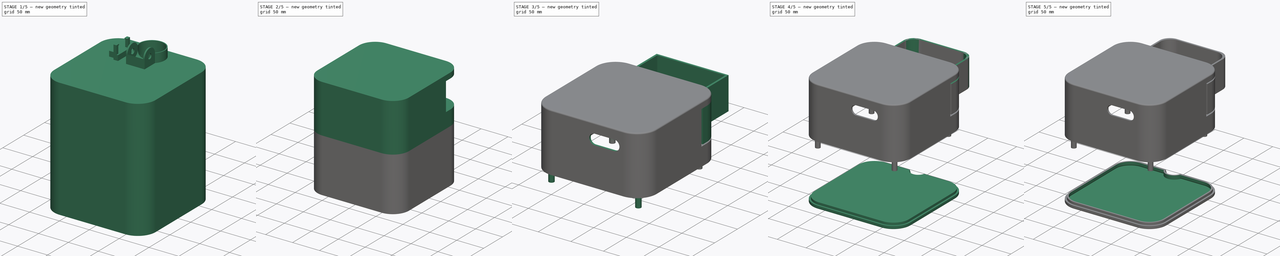
[diagram: build sequence overview — one tinted view per stage of 5, left to right]
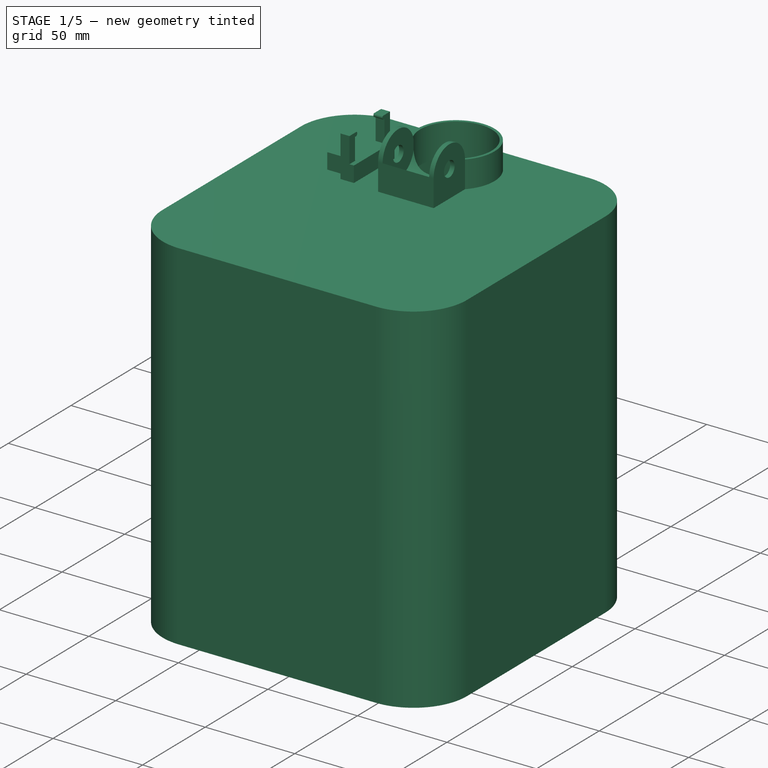
[diagram: stage 1 of 5 — iso view after this stage's code; geometry added in this stage tinted green]
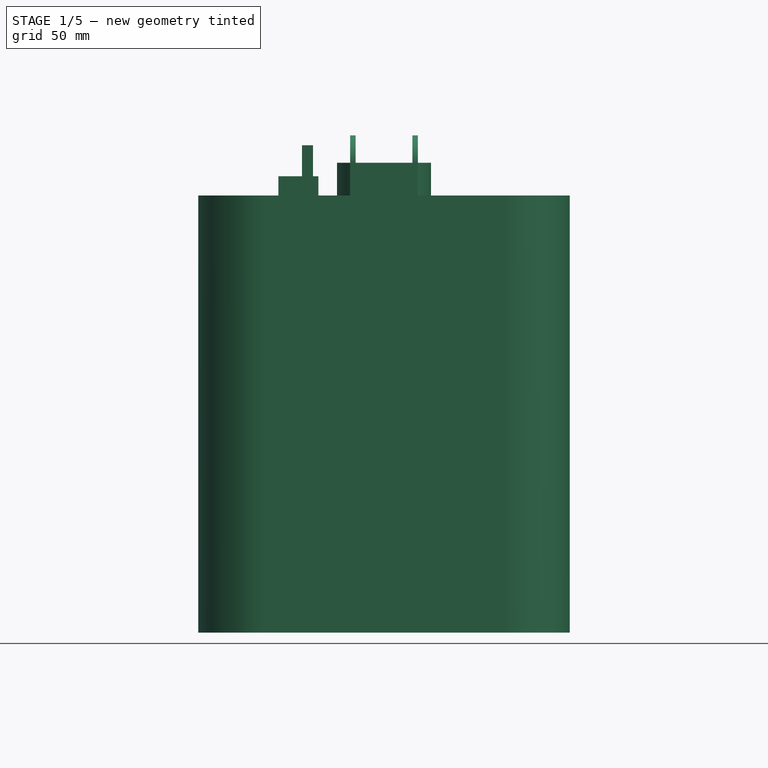
[diagram: stage 1 of 5 — front view after this stage's code; geometry added in this stage tinted green]
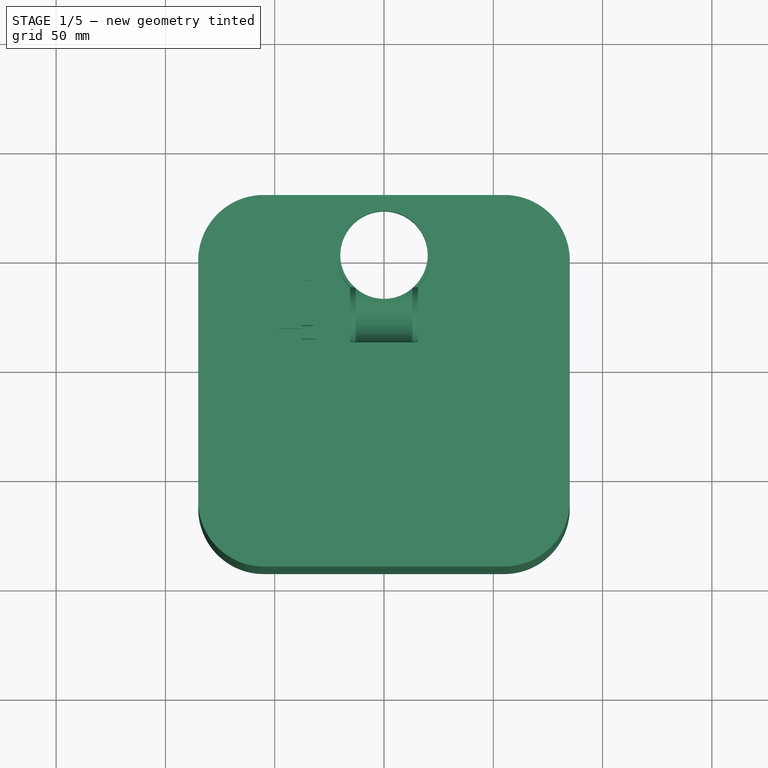
[diagram: stage 1 of 5 — top view after this stage's code; geometry added in this stage tinted green]
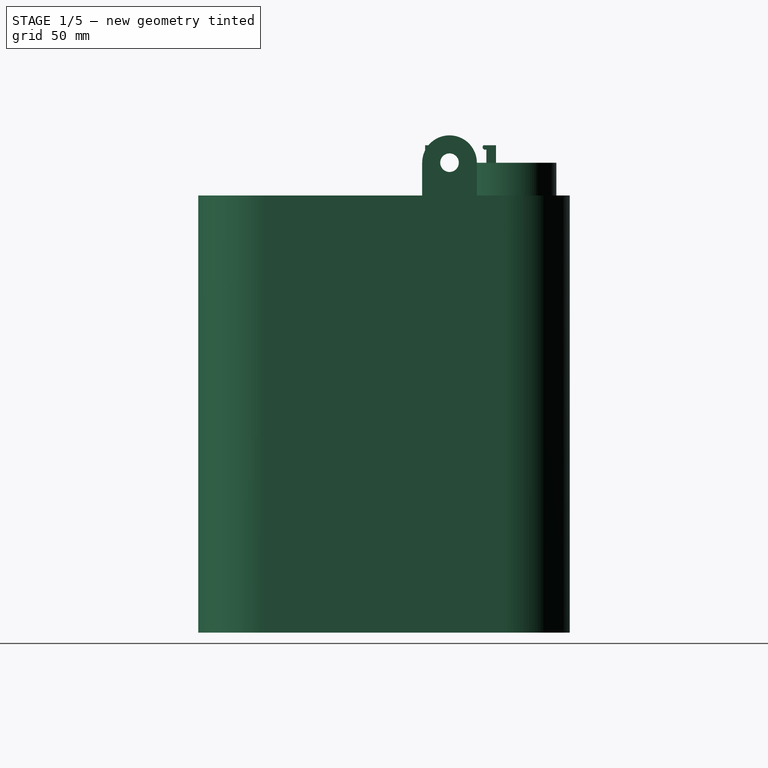
[diagram: stage 1 of 5 — right view after this stage's code; geometry added in this stage tinted green]
FCSTD DOCUMENT  (FreeCAD 1.0R39109 (Git))
Label: Feeder V3
License: All rights reserved
LicenseURL: https://en.wikipedia.org/wiki/All_rights_reserved
objects: Sketcher::SketchObject×29, PartDesign::Pocket×19, PartDesign::Pad×17, PartDesign::Fillet×9, PartDesign::ShapeBinder×8, PartDesign::Body×6, PartDesign::Plane×5, PartDesign::SubShapeBinder×5, PartDesign::Thickness×4, PartDesign::Line×2, PartDesign::PolarPattern×1, PartDesign::LinearPattern×1, PartDesign::Point×1, PartDesign::Revolution×1
note: 239 computed .brp shape members not serialized (recipe doc carries the construction recipe); baked Part::Feature solids carry a one-line shape summary decoded from their .brp

FEATURE [Sketcher::SketchObject] Sketch
  ArcFitTolerance = 1e-06
  AttachmentSupport = -> [XY_Plane]
  FullyConstrained = true
  MakeInternals = false
  MapMode = 5
  sketch-geometry (4):
    g0: LineSegment StartX=-85 StartY=-142.383 StartZ=0 EndX=85 EndY=-142.383 EndZ=0
    g1: LineSegment StartX=85 StartY=-142.383 StartZ=0 EndX=85 EndY=27.6169 EndZ=0
    g2: LineSegment StartX=85 StartY=27.6169 StartZ=0 EndX=-85 EndY=27.6169 EndZ=0
    g3: LineSegment StartX=-85 StartY=27.6169 StartZ=0 EndX=-85 EndY=-142.383 EndZ=0
  constraints (11):
    c: Coincident(g0,g1)
    c: Coincident(g1,g2)
    c: Coincident(g2,g3)
    c: Coincident(g3,g0)
    c: Horizontal(g0)
    c: Vertical(g1)
    c: Vertical(g3)
    c: Distance(g1,g3) = 170
    c: Distance(g0,g2) = 170
    c: Symmetric(g2,g1,g-2)
    c: Block(g2)
FEATURE [PartDesign::Pad] Pad  label="Base"
  Direction = (0,0,1)
  Length = 200
  Length2 = 10
  Profile = -> Sketch
  ReferenceAxis = -> Sketch [N_Axis]
  Refine = true
  Suppressed = false
  Type = 0
FEATURE [PartDesign::Fillet] Fillet  label="Round Base Corner"
  Base = -> Pad [Edge1,Edge8,Edge2,Edge5]
  BaseFeature = -> Pad
  Radius = 30
  Refine = true
  SupportTransform = false
  Suppressed = false
  UseAllEdges = false
FEATURE [PartDesign::Thickness] Thickness
  Base = -> Fillet [Face2]
  BaseFeature = -> Fillet
  Intersection = false
  Join = 0
  Mode = 0
  Refine = true
  Reversed = true
  SupportTransform = false
  Suppressed = false
  Value = 3
FEATURE [Sketcher::SketchObject] Sketch001
  ArcFitTolerance = 1e-06
  AttachmentSupport = -> [Thickness]
  ExternalGeometry = -> [Thickness]
  FullyConstrained = true
  MakeInternals = false
  MapMode = 5
  Placement = pos=(0,0,200) rot=(0,0,1;0rad)
  sketch-geometry (7):
    g0: ArcOfCircle CenterX=0 CenterY=0 CenterZ=0 NormalX=0 NormalY=0 NormalZ=1 AngleXU=0 Radius=21.5 StartAngle=5.54716 EndAngle=10.1608
    g1: Circle CenterX=0 CenterY=0 CenterZ=0 NormalX=0 NormalY=0 NormalZ=1 AngleXU=0 Radius=20
    g2: LineSegment StartX=15.9346 StartY=-14.434 StartZ=0 EndX=15.5 EndY=-14.9137 EndZ=0
    g3: LineSegment StartX=-15.9344 StartY=-14.4341 StartZ=0 EndX=-15.5 EndY=-14.9137 EndZ=0
    g4: LineSegment StartX=-15.5 StartY=-14.9137 StartZ=0 EndX=-15.5 EndY=-39.9137 EndZ=0
    g5: LineSegment StartX=15.5 StartY=-14.9137 StartZ=0 EndX=15.5 EndY=-39.9137 EndZ=0
    g6: LineSegment StartX=-15.5 StartY=-39.9137 StartZ=0 EndX=15.5 EndY=-39.9137 EndZ=0
  constraints (16):
    c: Block(g1)
    c: Block(g0)
    c: Tangent(g0,g3) = -1.5708
    c: Tangent(g0,g2) = 1.5708
    c: Distance(g4) = 25
    c: Vertical(g4)
    c: Coincident(g4,g3)
    c: Vertical(g5)
    c: Coincident(g5,g2)
    c: Coincident(g6,g4)
    c: Coincident(g6,g5)
    c: Horizontal(g6)
    c: Diameter(g1) = 40
    c: Radius(g0) = 21.5
    c: DistanceY(g5,g5) = 25
    c: DistanceX(g6,g6) = 31
FEATURE [PartDesign::Pad] Pad001  label="DoorWay"
  BaseFeature = -> Thickness
  Direction = (0,0,1)
  Length = 15
  Length2 = 10
  Profile = -> Sketch001
  ReferenceAxis = -> Sketch001 [N_Axis]
  Refine = true
  Suppressed = false
  Type = 0
FEATURE [Sketcher::SketchObject] Sketch003
  ArcFitTolerance = 1e-06
  AttachmentSupport = -> [Pad001]
  ExternalGeometry = -> [Pad001]
  FullyConstrained = true
  MakeInternals = false
  MapMode = 5
  Placement = pos=(-15.5,0,0) rot=(0.57735,-0.57735,-0.57735;2.0944rad)
  sketch-geometry (3):
    g0: ArcOfCircle CenterX=27.4137 CenterY=215 CenterZ=0 NormalX=0 NormalY=0 NormalZ=1 AngleXU=0 Radius=12.5 StartAngle=-4.35e-14 EndAngle=3.14159
    g1: LineSegment StartX=14.9137 StartY=215 StartZ=0 EndX=27.4137 EndY=215 EndZ=0
    g2: LineSegment StartX=39.9137 StartY=215 StartZ=0 EndX=27.4137 EndY=215 EndZ=0
  constraints (9):
    c: Coincident(g0,g-3)
    c: Coincident(g0,g-3)
    c: PointOnObject(g0,g-3)
    c: PointOnObject(g1,g0)
    c: Coincident(g1,g0)
    c: Horizontal(g1)
    c: PointOnObject(g2,g0)
    c: Coincident(g2,g0)
    c: Horizontal(g2)
FEATURE [PartDesign::Pad] Pad002  label="Door Hinge Form"
  BaseFeature = -> Pad001
  Direction = (-1,0,0)
  Length = 25
  Length2 = 10
  Profile = -> Sketch003
  ReferenceAxis = -> Sketch003 [N_Axis]
  Refine = true
  Suppressed = false
  Type = 3
  UpToFace = -> Pad001 [Face23]
FEATURE [PartDesign::Pocket] Pocket  label="Pocket Container"
  BaseFeature = -> Pad002
  Direction = (0,0,-1)
  Length = 5
  Length2 = 5
  Midplane = true
  Profile = -> Pad002 [Face28]
  Refine = true
  Suppressed = false
  Type = 1
FEATURE [Sketcher::SketchObject] Sketch004
  ArcFitTolerance = 1e-06
  AttachmentSupport = -> [Pocket]
  ExternalGeometry = -> [Pocket]
  FullyConstrained = true
  MakeInternals = false
  MapMode = 5
  Placement = pos=(15.5,0,0) rot=(0.57735,0.57735,0.57735;2.0944rad)
  sketch-geometry (1):
    g0: Circle CenterX=-27.4137 CenterY=215 CenterZ=0 NormalX=0 NormalY=0 NormalZ=1 AngleXU=0 Radius=4.25
  constraints (2):
    c: Diameter(g0) = 8.5
    c: Coincident(g0,g-3)
FEATURE [PartDesign::Pocket] Pocket001  label="Pocket Hinge Circle"
  BaseFeature = -> Pocket
  Direction = (-1,0,0)
  Length = 5
  Length2 = 5
  Profile = -> Sketch004 [Edge1]
  ReferenceAxis = -> Sketch004 [N_Axis]
  Refine = true
  Suppressed = false
  Type = 1
FEATURE [Sketcher::SketchObject] Sketch009
  ArcFitTolerance = 1e-06
  AttachmentSupport = -> [YZ_Plane]
  ExternalGeometry = -> [Pocket001]
  FullyConstrained = true
  MakeInternals = false
  MapMode = 5
  Placement = pos=(0,0,0) rot=(0.57735,0.57735,0.57735;2.0944rad)
  sketch-geometry (1):
    g0: Circle CenterX=-27.4137 CenterY=215 CenterZ=0 NormalX=0 NormalY=0 NormalZ=1 AngleXU=0 Radius=12.5
  constraints (3):
    c: DistanceX(g-4,g-5) = 25
    c: Coincident(g0,g-3)
    c: PointOnObject(g-5,g0)
FEATURE [PartDesign::Pocket] Pocket004  label="Pocket Doorway form"
  BaseFeature = -> Pocket001
  Direction = (-1,0,0)
  Length = 26
  Length2 = 5
  Midplane = true
  Profile = -> Sketch009
  ReferenceAxis = -> Sketch009 [N_Axis]
  Refine = true
  Suppressed = false
  Type = 0
FEATURE [PartDesign::Body] Body002  label="Storage Door Pin"
  AllowCompound = false
  Group = -> [Binder001,Binder002,CopyDatumPlane001,Sketch016,Pad005,Sketch017,Pad006,Sketch018,Binder003,Pocket007,PolarPattern]
  Origin = -> Origin002
  Tip = -> PolarPattern
FEATURE [Sketcher::SketchObject] Sketch020
  ArcFitTolerance = 1e-06
  AttachmentSupport = -> [Pocket004]
  ExternalGeometry = -> [Pocket004,DatumLine]
  FullyConstrained = true
  MakeInternals = false
  MapMode = 5
  Placement = pos=(0,0,200) rot=(0,0,1;0rad)
  sketch-geometry (9):
    g0: LineSegment StartX=-30 StartY=-27.4425 StartZ=0 EndX=-30 EndY=-6.14248 EndZ=0
    g1: LineSegment StartX=-30 StartY=-6.14248 StartZ=0 EndX=-32.5 EndY=-6.14248 EndZ=0
    g2: LineSegment StartX=-32.5 StartY=-6.14248 StartZ=0 EndX=-32.5 EndY=-11.0425 EndZ=0
    g3: LineSegment StartX=-32.5 StartY=-11.0425 StartZ=0 EndX=-48.3 EndY=-11.0425 EndZ=0
    g4: LineSegment StartX=-48.3 StartY=-11.0425 StartZ=0 EndX=-48.3 EndY=-33.6425 EndZ=0
    g5: LineSegment StartX=-48.3 StartY=-33.6425 StartZ=0 EndX=-32.5 EndY=-33.6425 EndZ=0
    g6: LineSegment StartX=-32.5 StartY=-33.6425 StartZ=0 EndX=-32.5 EndY=-38.5425 EndZ=0
    g7: LineSegment StartX=-30 StartY=-27.4425 StartZ=0 EndX=-30 EndY=-38.5425 EndZ=0
    g8: LineSegment StartX=-30 StartY=-38.5425 StartZ=0 EndX=-32.5 EndY=-38.5425 EndZ=0
  constraints (27):
    c: Vertical(g0)
    c: Vertical(g2)
    c: Horizontal(g3)
    c: Vertical(g4)
    c: Horizontal(g5)
    c: Vertical(g6)
    c: DistanceY(g2,g2) = 4.9
    c: DistanceY(g4,g4) = 22.6
    c: DistanceX(g5,g5) = 15.8
    c: DistanceX(g3,g3) = 15.8
    c: Coincident(g2,g3)
    c: Coincident(g0,g1)
    c: Coincident(g4,g5)
    c: Coincident(g3,g4)
    c: Coincident(g1,g2)
    c: Coincident(g6,g5)
    c: Horizontal(g1)
    c: DistanceX(g1,g1) = 2.5
    c: DistanceY(g6,g6) = 4.9
    c: Vertical(g7)
    c: Coincident(g7,g0)
    c: Coincident(g8,g7)
    c: Coincident(g8,g6)
    c: Horizontal(g8)
    c: DistanceY(g7,g7) = 11.1
    c: DistanceX(g7,g-9) = 14.5
    c: PointOnObject(g0,g-11)
FEATURE [PartDesign::Pad] Pad007  label="Servo seat"
  BaseFeature = -> Pocket004
  Direction = (0,0,1)
  Length = 8.8
  Length2 = 10
  Profile = -> Sketch020
  ReferenceAxis = -> Sketch020 [N_Axis]
  Refine = true
  Suppressed = false
  Type = 0
FEATURE [Sketcher::SketchObject] Sketch021
  ArcFitTolerance = 1e-06
  AttachmentSupport = -> [Pad007]
  ExternalGeometry = -> [Pad007,DatumLine]
  FullyConstrained = true
  MakeInternals = false
  MapMode = 5
  Placement = pos=(-32.5,0,0) rot=(0.57735,-0.57735,-0.57735;2.0944rad)
  sketch-geometry (14):
    g0: LineSegment StartX=38.5425 StartY=208.8 StartZ=0 EndX=38.5425 EndY=223 EndZ=0
    g1: LineSegment StartX=32.8474 StartY=223 StartZ=0 EndX=38.5425 EndY=223 EndZ=0
    g2: LineSegment StartX=38.5425 StartY=208.8 StartZ=0 EndX=38.5425 EndY=200 EndZ=0
    g3: LineSegment StartX=34.1425 StartY=208.69 StartZ=0 EndX=34.1425 EndY=221.1 EndZ=0
    g4: ArcOfCircle CenterX=33.4677 CenterY=222.032 CenterZ=0 NormalX=0 NormalY=0 NormalZ=1 AngleXU=0 Radius=1.15 StartAngle=2.14047 EndAngle=5.33948
    g5: LineSegment StartX=34.1425 StartY=208.69 StartZ=0 EndX=33.6425 EndY=200 EndZ=0
    g6: LineSegment StartX=33.6425 StartY=200 StartZ=0 EndX=38.5425 EndY=200 EndZ=0
    g7: LineSegment StartX=6.14248 StartY=208.8 StartZ=0 EndX=6.14248 EndY=223 EndZ=0
    g8: LineSegment StartX=11.8313 StartY=223 StartZ=0 EndX=6.14248 EndY=223 EndZ=0
    g9: LineSegment StartX=6.14248 StartY=208.8 StartZ=0 EndX=6.14248 EndY=200 EndZ=0
    g10: LineSegment StartX=10.5425 StartY=208.69 StartZ=0 EndX=10.5425 EndY=221.1 EndZ=0
    g11: ArcOfCircle CenterX=11.1278 CenterY=222.09 CenterZ=0 NormalX=0 NormalY=0 NormalZ=1 AngleXU=0 Radius=1.15 StartAngle=4.1784 EndAngle=7.19567
    g12: LineSegment StartX=10.5425 StartY=208.69 StartZ=0 EndX=11.0425 EndY=200 EndZ=0
    g13: LineSegment StartX=11.0425 StartY=200 StartZ=0 EndX=6.14248 EndY=200 EndZ=0
  constraints (36):
    c: Distance(g0) = 14.2
    c: Coincident(g0,g-3)
    c: Vertical(g0)
    c: Coincident(g1,g0)
    c: Coincident(g2,g0)
    c: Vertical(g3)
    c: Coincident(g4,g1)
    c: Coincident(g4,g3)
    c: Horizontal(g1,g0)
    c: Distance(g4,g3) = 1.15
    c: Angle(g4) = 3.19901
    c: Coincident(g5,g-5)
    c: Block(g5)
    c: Coincident(g3,g5)
    c: Coincident(g6,g5)
    c: Coincident(g6,g2)
    c: Horizontal(g6)
    c: DistanceX(g6,g6) = 4.9
    c: DistanceY(g3,g3) = 12.41
    c: Coincident(g8,g7)
    c: Coincident(g9,g7)
    c: Coincident(g11,g8)
    c: Block(g12)
    c: Coincident(g10,g12)
    c: Coincident(g13,g12)
    c: Coincident(g13,g9)
    c: Coincident(g-7,g9)
    c: Horizontal(g13)
    c: Vertical(g7)
    c: Vertical(g10)
    c: Horizontal(g8)
    c: DistanceY(g10,g10) = 12.41
    c: DistanceY(g7,g7) = 14.2
    c: DistanceX(g13,g13) = 4.9
    c: Coincident(g7,g-6)
    c: Block(g11)
FEATURE [PartDesign::Pad] Pad008  label="ServoHolder"
  BaseFeature = -> Pad007
  Direction = (-1,0,0)
  Length = 5
  Length2 = 10
  Profile = -> Sketch021
  ReferenceAxis = -> Sketch021 [N_Axis]
  Refine = true
  Suppressed = false
  Type = 0
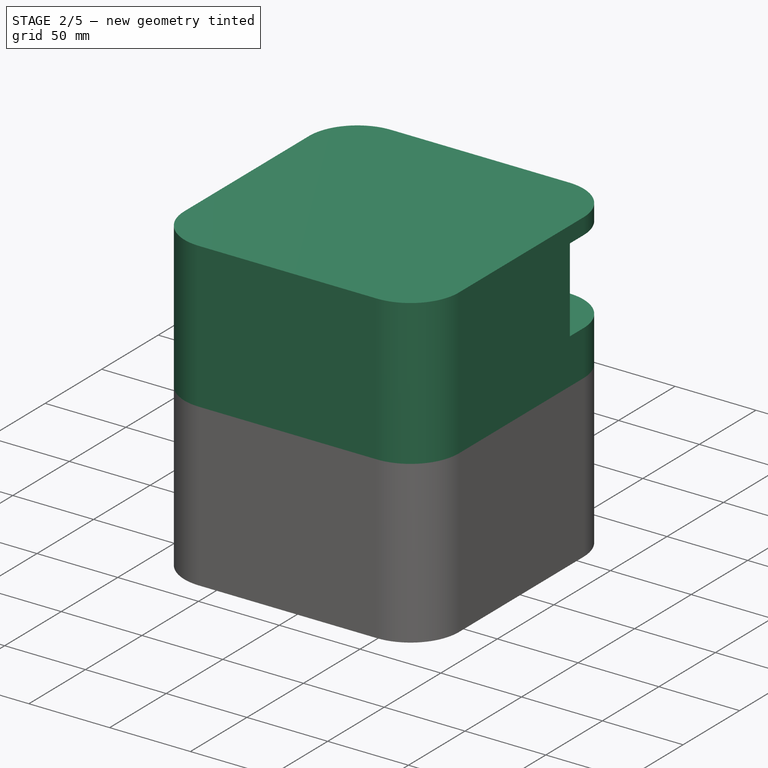
[diagram: stage 2 of 5 — iso view after this stage's code; geometry added in this stage tinted green]
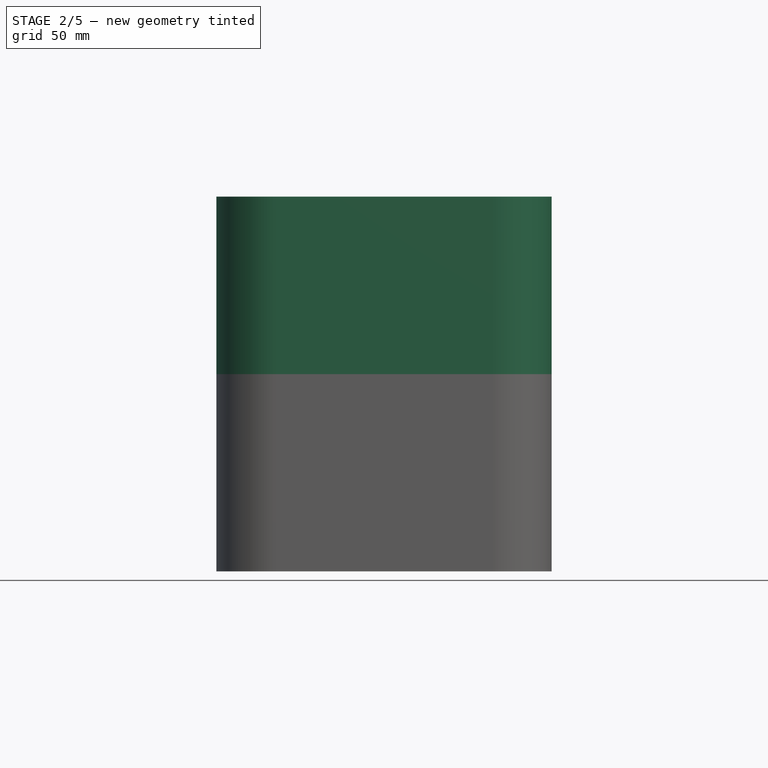
[diagram: stage 2 of 5 — front view after this stage's code; geometry added in this stage tinted green]
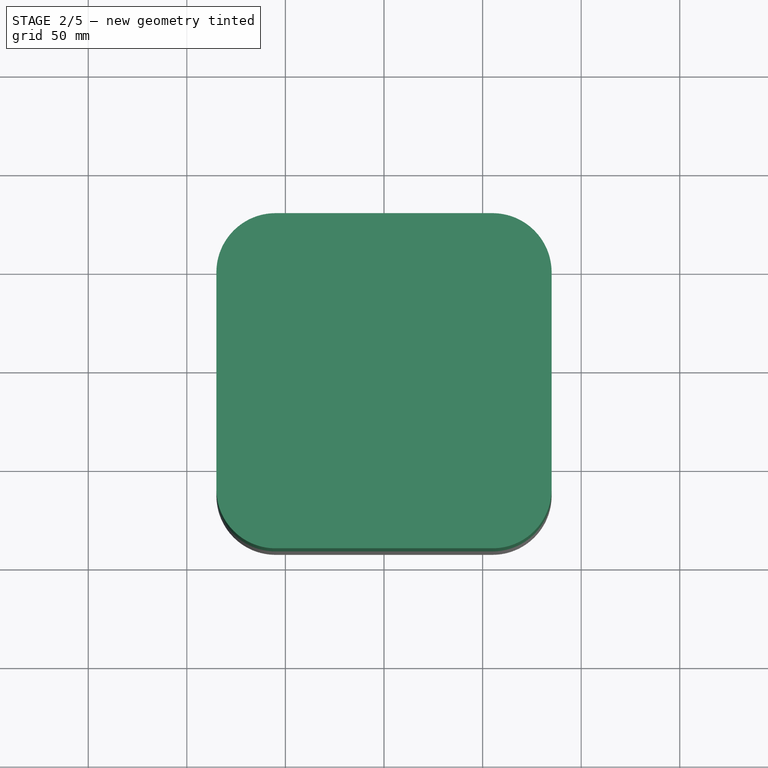
[diagram: stage 2 of 5 — top view after this stage's code; geometry added in this stage tinted green]
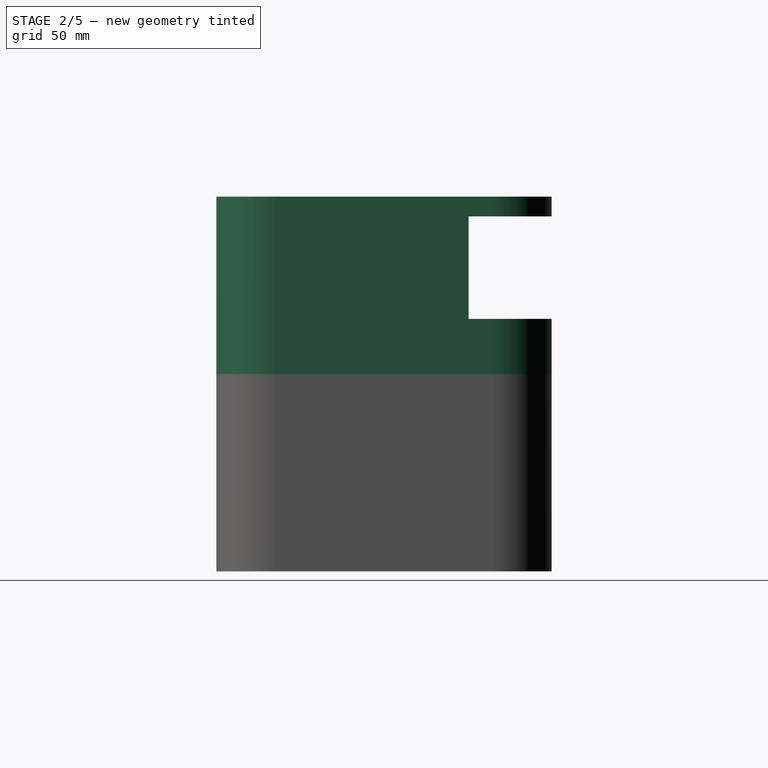
[diagram: stage 2 of 5 — right view after this stage's code; geometry added in this stage tinted green]
FEATURE [PartDesign::LinearPattern] LinearPattern  label="Clip repeat"
  BaseFeature = -> Pad008
  Direction = -> Pad008 [Face21]
  Length = 10.82
  Mode = 0
  Occurrences = 2
  Offset = 10.82
  Originals = -> [Pad008]
  Refine = true
  Reversed = true
  Suppressed = false
  TransformMode = 0
FEATURE [PartDesign::Plane] DatumPlane002  label="Floor storage"
  AttachmentSupport = -> [LinearPattern]
  Length = 204
  MapMode = 5
  Placement = pos=(0,0,200) rot=(0,0,1;0rad)
  ResizeMode = 0
  Width = 204
FEATURE [PartDesign::SubShapeBinder] Binder004
  BindCopyOnChange = 0
  BindMode = 0
  ClaimChildren = false
  Context = -> Body [Binder004.]
  Fuse = false
  MakeFace = true
  OffsetFill = false
  OffsetIntersection = false
  OffsetJoinType = 0
  OffsetOpenResult = false
  PartialLoad = false
  Refine = true
  Relative = true
  Support = -> [LinearPattern[Face2]]
  _Version = 2
FEATURE [PartDesign::Pocket] Pocket008
  BaseFeature = -> LinearPattern
  Direction = (0,0,1)
  Length = 100
  Length2 = 5
  Profile = -> Binder004
  Refine = true
  Suppressed = false
  Type = 0
FEATURE [PartDesign::ShapeBinder] ShapeBinder001  label="Base Shape Binder"
  Support = -> [Pocket008]
  TraceSupport = false
FEATURE [PartDesign::Pad] Pad015  label="Height of base"
  Direction = (0,0,1)
  Length = 90
  Length2 = 10
  Profile = -> ShapeBinder001
  Refine = true
  Suppressed = false
  Type = 0
FEATURE [PartDesign::ShapeBinder] CopyPocket009  label="Storage Door Datum"
  Placement = pos=(0,0,215) rot=(0,0,1;0rad)
  TraceSupport = false
FEATURE [PartDesign::Line] DatumLine001  label="Storage Door Center"
  AttacherType = Attacher::AttachEngineLine
  AttachmentSupport = -> [CopyPocket009]
  Length = 20
  MapMode = 19
  Placement = pos=(0,0,215) rot=(0,0,-1;0.736025rad)
  ResizeMode = 0
FEATURE [PartDesign::Point] DatumPoint001  label="Storage Door Axle"
  AttacherType = Attacher::AttachEnginePoint
  AttachmentSupport = -> [Pocket008]
  MapMode = 36
  Placement = pos=(-15.5,-27.4137,215) rot=(0.707107,0.707107,0;3.14159rad)
FEATURE [Sketcher::SketchObject] Sketch034
  ArcFitTolerance = 1e-06
  AttachmentSupport = -> [Pad015]
  ExternalGeometry = -> [DatumPoint001,CopyPocket009,Pad015]
  FullyConstrained = true
  MakeInternals = false
  MapMode = 5
  Placement = pos=(85,0,0) rot=(0.57735,0.57735,0.57735;2.0944rad)
  sketch-geometry (4):
    g0: LineSegment StartX=84.996 StartY=228 StartZ=0 EndX=84.996 EndY=280 EndZ=0
    g1: LineSegment StartX=84.996 StartY=280 StartZ=0 EndX=-14.434 EndY=280 EndZ=0
    g2: LineSegment StartX=-14.434 StartY=280 StartZ=0 EndX=-14.434 EndY=228 EndZ=0
    g3: LineSegment StartX=-14.434 StartY=228 StartZ=0 EndX=84.996 EndY=228 EndZ=0
  constraints (12):
    c: Coincident(g0,g1)
    c: Coincident(g1,g2)
    c: Coincident(g2,g3)
    c: Coincident(g3,g0)
    c: Vertical(g0)
    c: Vertical(g2)
    c: Horizontal(g1)
    c: Horizontal(g3)
    c: DistanceY(g2,g2) = 52
    c: PointOnObject(g-4,g2)
    c: Distance(g-6,g1) = 10
    c: DistanceX(g3,g3) = 99.43
FEATURE [PartDesign::ShapeBinder] CopyPocket010  label="Hinge length"
  Placement = pos=(0,0,215) rot=(0,0,1;0rad)
  TraceSupport = false
FEATURE [PartDesign::Pocket] Pocket009  label="Food Plate Cut"
  BaseFeature = -> Pad015
  Direction = (-1,0,0)
  Length = 0
  Length2 = 5
  Profile = -> Sketch034
  ReferenceAxis = -> Sketch034 [N_Axis]
  Refine = true
  Suppressed = false
  Type = 3
  UpToFace = -> Pad015 [Face3]
FEATURE [PartDesign::Thickness] Thickness001
  Base = -> Pocket009 [Face2]
  BaseFeature = -> Pocket009
  Intersection = false
  Join = 0
  Mode = 0
  Refine = true
  Reversed = true
  SupportTransform = false
  Suppressed = false
  Value = 3
FEATURE [Sketcher::SketchObject] Sketch037
  ArcFitTolerance = 1e-06
  AttachmentSupport = -> [Thickness001]
  ExternalGeometry = -> [CopyPocket009]
  FullyConstrained = true
  MakeInternals = false
  MapMode = 5
  Placement = pos=(0,0,225) rot=(1,0,0;3.14159rad)
  sketch-geometry (6):
    g0: ArcOfCircle CenterX=0 CenterY=0 CenterZ=0 NormalX=0 NormalY=0 NormalZ=1 AngleXU=0 Radius=21.5 StartAngle=3.0286 EndAngle=6.39618
    g1: LineSegment StartX=20 StartY=34.4342 StartZ=0 EndX=20 EndY=14.4342 EndZ=0
    g2: LineSegment StartX=-20 StartY=34.4342 StartZ=0 EndX=-20 EndY=14.4342 EndZ=0
    g3: ArcOfCircle CenterX=3.5332e-12 CenterY=-35.523 CenterZ=0 NormalX=0 NormalY=0 NormalZ=1 AngleXU=0 Radius=72.76 StartAngle=1.29234 EndAngle=1.84926
    g4: LineSegment StartX=20 StartY=14.4342 StartZ=0 EndX=21.3629 EndY=2.42425 EndZ=0
    g5: LineSegment StartX=-20 StartY=14.4342 StartZ=0 EndX=-21.3629 EndY=2.42425 EndZ=0
  constraints (19):
    c: Coincident(g0,g-1)
    c: Coincident(g3,g2)
    c: Coincident(g1,g3)
    c: DistanceX(g-6,g2) = 3
    c: DistanceX(g1,g-5) = 3
    c: Vertical(g2,g2)
    c: Horizontal(g2,g1)
    c: Radius(g3) = 72.76
    c: Tangent(g0,g5) = -1.5708
    c: Radius(g0) = 21.5
    c: Coincident(g5,g2)
    c: Tangent(g0,g4) = 1.5708
    c: Coincident(g1,g4)
    c: Horizontal(g1,g2)
    c: Vertical(g1)
    c: DistanceY(g5,g5) = 12.01
    c: DistanceY(g4,g4) = 12.01
    c: DistanceY(g1,g1) = 20
    c: DistanceY(g-5,g-5) = 23
FEATURE [PartDesign::Pocket] Pocket010  label="Food door cut"
  BaseFeature = -> Thickness001
  Direction = (0,0,1)
  Length = 0
  Length2 = 5
  Profile = -> Sketch037
  ReferenceAxis = -> Sketch037 [N_Axis]
  Refine = true
  Suppressed = false
  Type = 3
  UpToFace = -> Thickness001 [Face3]
FEATURE [PartDesign::Body] Body001  label="Storage Door"
  AllowCompound = false
  Group = -> [CopyDatumPlane,Binder,Sketch011,Sketch012,Sketch015,Pad019,Pocket014,Pocket015,Revolution,Fillet001]
  Origin = -> Origin001
  Tip = -> Fillet001
FEATURE [Sketcher::SketchObject] Sketch054
  ArcFitTolerance = 1e-06
  AttachmentSupport = -> [Pocket010]
  ExternalGeometry = -> [Pocket010]
  FullyConstrained = true
  MakeInternals = false
  MapMode = 5
  Placement = pos=(0,-14.434,0) rot=(0,0.707107,0.707107;3.14159rad)
  sketch-geometry (1):
    g0: Circle CenterX=-3.5467e-12 CenterY=233.933 CenterZ=0 NormalX=0 NormalY=0 NormalZ=1 AngleXU=0 Radius=20.8615
  constraints (3):
    c: PointOnObject(g-3,g0)
    c: PointOnObject(g-3,g0)
    c: Block(g0)
FEATURE [PartDesign::Pocket] Pocket024  label="Food door cut001"
  BaseFeature = -> Pocket010
  Direction = (0,-1,2e-16)
  Length = 0
  Length2 = 5
  Profile = -> Sketch054
  ReferenceAxis = -> Sketch054 [N_Axis]
  Refine = true
  Suppressed = false
  Type = 3
  UpToFace = -> Pocket010 [Face32]
FEATURE [Sketcher::SketchObject] Sketch056  label="HX711 Hole"
  ArcFitTolerance = 1e-06
  AttachmentSupport = -> [Pocket024]
  ExternalGeometry = -> [DatumLine001,Pocket024]
  FullyConstrained = true
  MakeInternals = false
  MapMode = 5
  Placement = pos=(0,-14.434,0) rot=(0,0.707107,0.707107;3.14159rad)
  sketch-geometry (10):
    g0: LineSegment StartX=-9 StartY=276.795 StartZ=0 EndX=-9 EndY=258.795 EndZ=0
    g1: LineSegment StartX=-9 StartY=258.795 StartZ=0 EndX=9 EndY=258.795 EndZ=0
    g2: LineSegment StartX=9 StartY=258.795 StartZ=0 EndX=9 EndY=276.795 EndZ=0
    g3: LineSegment StartX=9 StartY=276.795 StartZ=0 EndX=-9 EndY=276.795 EndZ=0
    g4: GeomPoint [constr] X=2.1e-15 Y=267.795 Z=0
    g5: LineSegment StartX=6.6 StartY=261.195 StartZ=0 EndX=6.6 EndY=274.395 EndZ=0
    g6: LineSegment StartX=6.6 StartY=274.395 StartZ=0 EndX=-6.6 EndY=274.395 EndZ=0
    g7: LineSegment StartX=-6.6 StartY=274.395 StartZ=0 EndX=-6.6 EndY=261.195 EndZ=0
    g8: LineSegment StartX=-6.6 StartY=261.195 StartZ=0 EndX=6.6 EndY=261.195 EndZ=0
    g9: GeomPoint [constr] X=2.1e-15 Y=267.795 Z=0
  constraints (25):
    c: Coincident(g0,g1)
    c: Coincident(g1,g2)
    c: Coincident(g2,g3)
    c: Coincident(g3,g0)
    c: Vertical(g0)
    c: Vertical(g2)
    c: Horizontal(g1)
    c: Horizontal(g3)
    c: Symmetric(g2,g0,g4)
    c: PointOnObject(g4,g-3)
    c: DistanceX(g3,g3) = 18
    c: DistanceY(g0,g0) = 18
    c: Distance(g-4,g1) = 4
    c: Coincident(g5,g6)
    c: Coincident(g6,g7)
    c: Coincident(g7,g8)
    c: Coincident(g8,g5)
    c: Vertical(g5)
    c: Vertical(g7)
    c: Horizontal(g6)
    c: Horizontal(g8)
    c: Symmetric(g7,g5,g9)
    c: Coincident(g9,g4)
    c: DistanceX(g8,g8) = 13.2
    c: DistanceY(g7,g7) = 13.2
FEATURE [Sketcher::SketchObject] Sketch057
  ArcFitTolerance = 1e-06
  AttachmentSupport = -> [Pocket024]
  ExternalGeometry = -> [Sketch056,Pocket024]
  FullyConstrained = true
  MakeInternals = false
  MapMode = 5
  Placement = pos=(0,-17.434,0) rot=(1,0,0;1.5708rad)
  sketch-geometry (4):
    g0: LineSegment StartX=-12 StartY=290 StartZ=0 EndX=-12 EndY=255.795 EndZ=0
    g1: LineSegment StartX=-12 StartY=255.795 StartZ=0 EndX=12 EndY=255.795 EndZ=0
    g2: LineSegment StartX=12 StartY=255.795 StartZ=0 EndX=12 EndY=290 EndZ=0
    g3: LineSegment StartX=12 StartY=290 StartZ=0 EndX=-12 EndY=290 EndZ=0
  constraints (11):
    c: Coincident(g0,g1)
    c: Coincident(g1,g2)
    c: Coincident(g2,g3)
    c: Coincident(g3,g0)
    c: Vertical(g0)
    c: Vertical(g2)
    c: Horizontal(g1)
    c: PointOnObject(g0,g-4)
    c: Distance(g1,g-5) = 3
    c: Symmetric(g0,g2,g-2)
    c: Distance(g0,g-6) = 3
FEATURE [PartDesign::Pad] Pad026  label="HX71 Hole width"
  BaseFeature = -> Pocket024
  Direction = (0,-1,2e-16)
  Length = 12
  Length2 = 10
  Profile = -> Sketch057
  ReferenceAxis = -> Sketch057 [N_Axis]
  Refine = true
  Suppressed = false
  Type = 0
FEATURE [PartDesign::Pocket] Pocket027
  BaseFeature = -> Pad026
  Direction = (0,-1,2e-16)
  Length = 0
  Length2 = 5
  Profile = -> Sketch056 [Edge7,Edge8,Edge5,Edge6]
  ReferenceAxis = -> Sketch056 [N_Axis]
  Refine = true
  Suppressed = false
  Type = 3
  UpToFace = -> Pad026 [Face40]
FEATURE [PartDesign::Body] Body009  label="Food Plate"
  AllowCompound = false
  Group = -> [ShapeBinder,CopyPocket017,Sketch048,Pad024,Sketch050,Sketch052,Pocket025,Thickness002,Pad025,Sketch055,Pocket026,Fillet002,Sketch058,Pad027,Sketch059,Pocket028,Fillet005,Pocket032]
  Origin = -> Origin009
  Tip = -> Pocket032
FEATURE [Sketcher::SketchObject] Sketch062
  ArcFitTolerance = 1e-06
  AttachmentSupport = -> [Pocket008]
  ExternalGeometry = -> [Pocket008]
  FullyConstrained = true
  MakeInternals = false
  MapMode = 5
  Placement = pos=(0,0,200) rot=(0,0,1;0rad)
  sketch-geometry (4):
    g0: Circle CenterX=66.5 CenterY=7.09604 CenterZ=0 NormalX=0 NormalY=0 NormalZ=1 AngleXU=0 Radius=4.25
    g1: Circle CenterX=66.5 CenterY=-125.904 CenterZ=0 NormalX=0 NormalY=0 NormalZ=1 AngleXU=0 Radius=4.25
    g2: Circle CenterX=-66.5 CenterY=-125.904 CenterZ=0 NormalX=0 NormalY=0 NormalZ=1 AngleXU=0 Radius=4.25
    g3: Circle CenterX=-66.5 CenterY=7.09604 CenterZ=0 NormalX=0 NormalY=0 NormalZ=1 AngleXU=0 Radius=4.25
  constraints (11):
    c: Diameter(g0) = 8.5
    c: Diameter(g1) = 8.5
    c: Diameter(g2) = 8.5
    c: Diameter(g3) = 8.5
    c: Horizontal(g1,g2)
    c: Vertical(g0,g1)
    c: Vertical(g3,g2)
    c: DistanceX(g3,g0) = 133
    c: DistanceY(g2,g3) = 133
    c: Symmetric(g0,g3,g-2)
    c: Distance(g2,g-3) = 8
FEATURE [PartDesign::Pocket] Pocket033
  BaseFeature = -> Pocket008
  Direction = (0,0,-1)
  Length = 5
  Length2 = 5
  Profile = -> Sketch062
  ReferenceAxis = -> Sketch062 [N_Axis]
  Refine = true
  Suppressed = false
  Type = 1
FEATURE [PartDesign::Fillet] Fillet008
  Base = -> Pocket033 [Edge114,Edge81,Edge124,Edge92]
  BaseFeature = -> Pocket033
  Radius = 1
  Refine = true
  SupportTransform = false
  Suppressed = false
  UseAllEdges = false
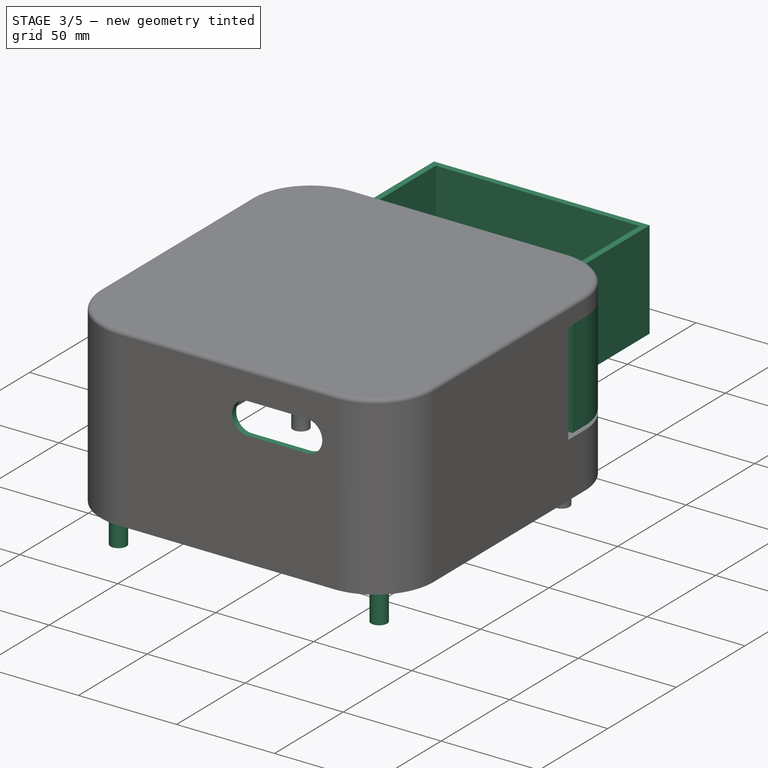
[diagram: stage 3 of 5 — iso view after this stage's code; geometry added in this stage tinted green]
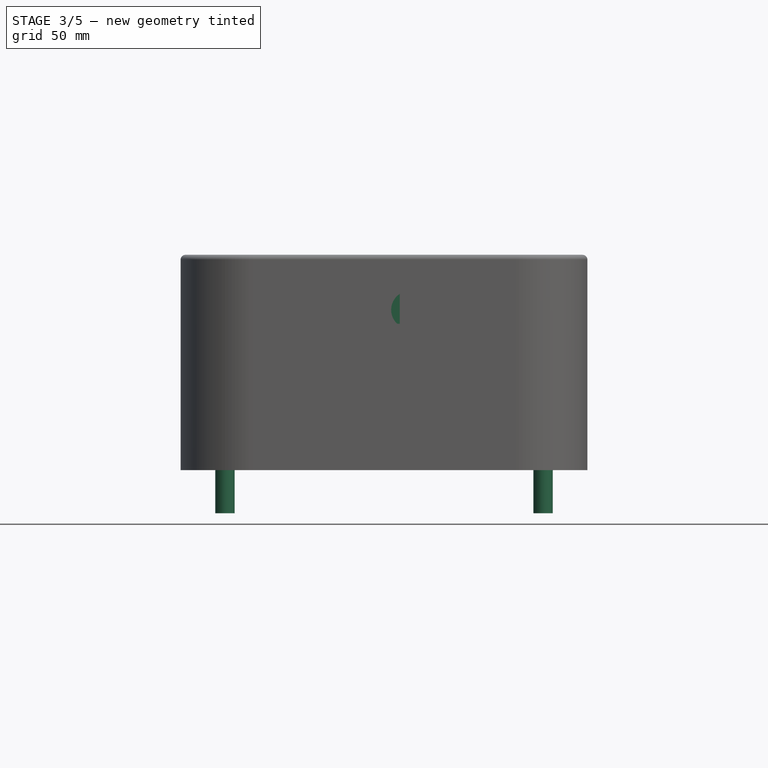
[diagram: stage 3 of 5 — front view after this stage's code; geometry added in this stage tinted green]
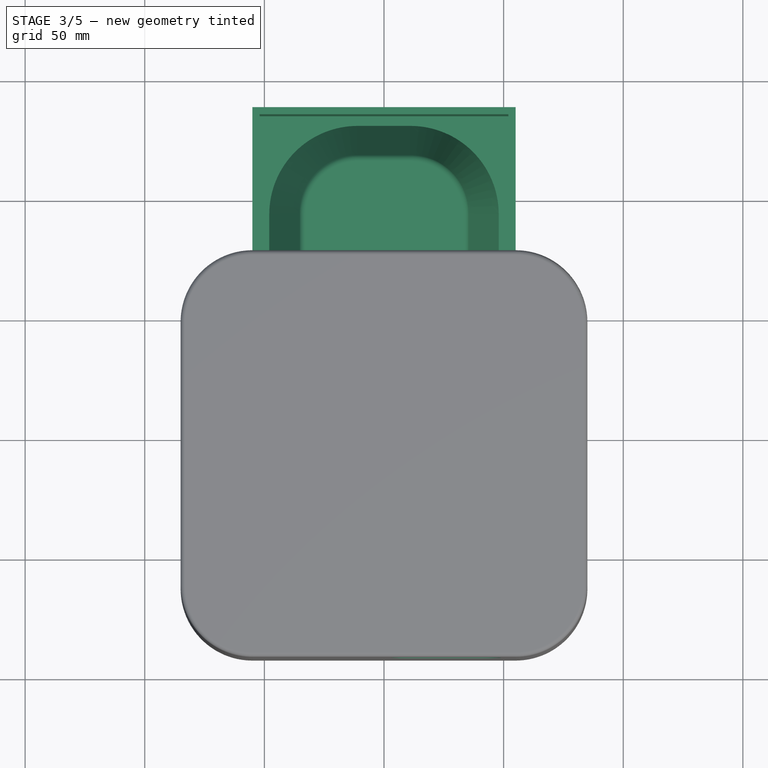
[diagram: stage 3 of 5 — top view after this stage's code; geometry added in this stage tinted green]
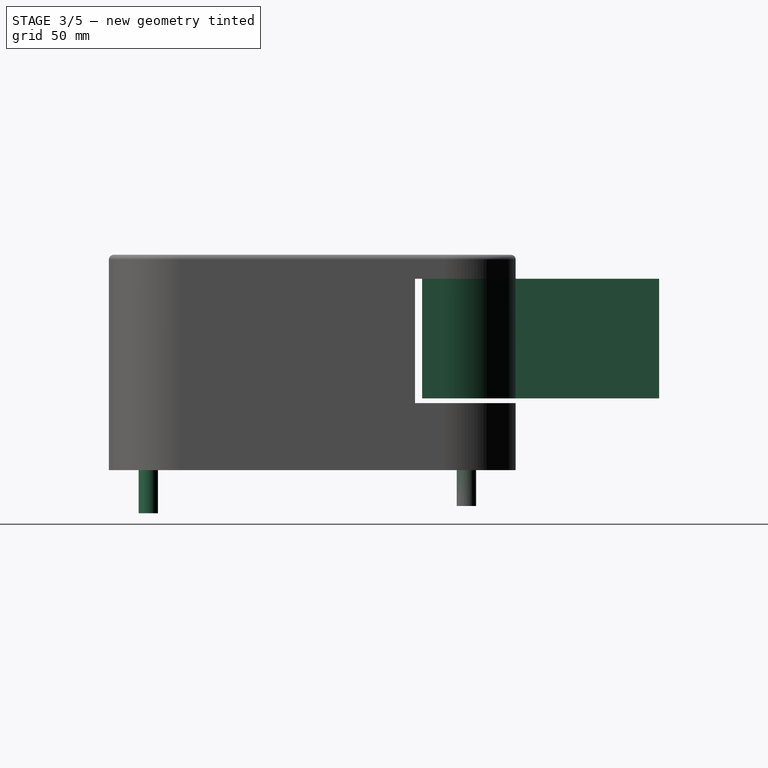
[diagram: stage 3 of 5 — right view after this stage's code; geometry added in this stage tinted green]
FEATURE [PartDesign::ShapeBinder] CopyPocket017  label="Food base form"
  Support = -> [Pocket024]
  TraceSupport = false
FEATURE [Sketcher::SketchObject] Sketch048
  ArcFitTolerance = 1e-06
  AttachmentSupport = -> [CopyPocket017]
  ExternalGeometry = -> [CopyPocket017]
  FullyConstrained = true
  MakeInternals = false
  MapMode = 5
  Placement = pos=(0,0,280) rot=(1,0,0;3.14159rad)
  sketch-geometry (8):
    g0: ArcOfCircle CenterX=-55 CenterY=2.38314 CenterZ=0 NormalX=0 NormalY=0 NormalZ=1 AngleXU=1.5708 Radius=30 StartAngle=1.5708 EndAngle=3.14159
    g1: LineSegment StartX=-55 StartY=-27.6169 StartZ=0 EndX=-55 EndY=-87.6169 EndZ=0
    g2: LineSegment StartX=-55 StartY=-87.6169 StartZ=0 EndX=55 EndY=-87.6169 EndZ=0
    g3: ArcOfCircle CenterX=55 CenterY=2.38314 CenterZ=0 NormalX=0 NormalY=0 NormalZ=1 AngleXU=1.5708 Radius=30 StartAngle=3.14159 EndAngle=4.71239
    g4: LineSegment StartX=55 StartY=-27.6169 StartZ=0 EndX=55 EndY=-87.6169 EndZ=0
    g5: LineSegment StartX=-85 StartY=2.38314 StartZ=0 EndX=-85 EndY=11.434 EndZ=0
    g6: LineSegment StartX=-85 StartY=11.434 StartZ=0 EndX=85 EndY=11.434 EndZ=0
    g7: LineSegment StartX=85 StartY=2.38314 StartZ=0 EndX=85 EndY=11.434 EndZ=0
  constraints (22):
    c: Coincident(g0,g-5)
    c: Coincident(g1,g2)
    c: Vertical(g1)
    c: Horizontal(g2)
    c: Distance(g2,g1) = 60
    c: Coincident(g1,g0)
    c: DistanceX(g2,g2) = 110
    c: Horizontal(g-5,g3)
    c: Vertical(g0,g-5)
    c: Coincident(g3,g-6)
    c: Block(g3)
    c: Coincident(g4,g3)
    c: Coincident(g4,g2)
    c: Coincident(g5,g0)
    c: PointOnObject(g5,g-3)
    c: Coincident(g6,g5)
    c: Horizontal(g6)
    c: Coincident(g7,g3)
    c: Coincident(g7,g6)
    c: Vertical(g7)
    c: Distance(g5,g-4) = 3
    c: Coincident(g0,g-5)
FEATURE [PartDesign::Pad] Pad024  label="Plate height"
  Direction = (0,0,-1)
  Length = 50
  Length2 = 10
  Profile = -> Sketch048
  ReferenceAxis = -> Sketch048 [N_Axis]
  Refine = true
  Suppressed = false
  Type = 0
FEATURE [Sketcher::SketchObject] Sketch050
  ArcFitTolerance = 1e-06
  AttachmentSupport = -> [Pad024]
  ExternalGeometry = -> [Pad024]
  FullyConstrained = true
  MakeInternals = false
  MapMode = 5
  Placement = pos=(0,0,230) rot=(1,0,0;3.14159rad)
  sketch-geometry (13):
    g0: LineSegment StartX=-46 StartY=-13.0173 StartZ=0 EndX=-46 EndY=-43.6291 EndZ=0
    g1: LineSegment StartX=-11.0122 StartY=-78.6169 StartZ=0 EndX=11.0122 EndY=-78.6169 EndZ=0
    g2: LineSegment StartX=46 StartY=-43.6291 StartZ=0 EndX=46 EndY=-13.0173 EndZ=0
    g3: LineSegment StartX=32.0488 StartY=0.933964 StartZ=0 EndX=-32.0488 EndY=0.933964 EndZ=0
    g4: GeomPoint [constr] X=0 Y=-38.8414 Z=0
    g5: ArcOfCircle CenterX=11.0122 CenterY=-43.6291 CenterZ=0 NormalX=0 NormalY=0 NormalZ=1 AngleXU=0 Radius=34.9878 StartAngle=4.71239 EndAngle=6.28319
    g6: GeomPoint [constr] X=46 Y=-78.6169 Z=0
    g7: ArcOfCircle CenterX=-11.0122 CenterY=-43.6291 CenterZ=0 NormalX=0 NormalY=0 NormalZ=1 AngleXU=0 Radius=34.9878 StartAngle=3.14159 EndAngle=4.71239
    g8: GeomPoint [constr] X=-46 Y=-78.6169 Z=0
    g9: ArcOfCircle CenterX=32.0488 CenterY=-13.0173 CenterZ=0 NormalX=0 NormalY=0 NormalZ=1 AngleXU=0 Radius=13.9512 StartAngle=-1.652e-13 EndAngle=1.5708
    g10: GeomPoint [constr] X=46 Y=0.933964 Z=0
    g11: ArcOfCircle CenterX=-32.0488 CenterY=-13.0173 CenterZ=0 NormalX=0 NormalY=0 NormalZ=1 AngleXU=0 Radius=13.9512 StartAngle=1.5708 EndAngle=3.14159
    g12: GeomPoint [constr] X=-46 Y=0.933964 Z=0
  constraints (29):
    c: Vertical(g0)
    c: Vertical(g2)
    c: Horizontal(g1)
    c: Horizontal(g3)
    c: Symmetric(g6,g12,g4)
    c: PointOnObject(g4,g-2)
    c: Distance(g-4,g2) = 9
    c: Distance(g10,g-3) = 12
    c: PointOnObject(g6,g1)
    c: PointOnObject(g6,g2)
    c: Tangent(g1,g5) = -1.5708
    c: Tangent(g2,g5) = -1.5708
    c: PointOnObject(g8,g0)
    c: PointOnObject(g8,g1)
    c: Tangent(g0,g7) = -1.5708
    c: Tangent(g1,g7) = -1.5708
    c: PointOnObject(g10,g2)
    c: PointOnObject(g10,g3)
    c: Tangent(g2,g9) = -1.5708
    c: Tangent(g3,g9) = -1.5708
    c: PointOnObject(g12,g0)
    c: PointOnObject(g12,g3)
    c: Tangent(g0,g11) = -1.5708
    c: Tangent(g3,g11) = -1.5708
    c: Distance(g-6,g1) = 9
    c: Horizontal(g7,g5)
    c: Block(g7)
    c: Horizontal(g11,g9)
    c: Block(g11)
FEATURE [PartDesign::Pocket] Pocket025  label="Plate Bowl cut"
  BaseFeature = -> Pad024
  Direction = (0,0,1)
  Length = 30
  Length2 = 5
  Profile = -> Sketch050
  ReferenceAxis = -> Sketch050 [N_Axis]
  Refine = true
  Suppressed = false
  TaperAngle = -24
  Type = 0
FEATURE [Sketcher::SketchObject] Sketch052
  ArcFitTolerance = 1e-06
  AttachmentSupport = -> [Pocket025]
  FullyConstrained = true
  MakeInternals = false
  MapMode = 5
  Placement = pos=(0,-11.434,0) rot=(1,0,0;1.5708rad)
  sketch-geometry (2):
    g0: ArcOfCircle CenterX=0 CenterY=236.136 CenterZ=0 NormalX=0 NormalY=0 NormalZ=1 AngleXU=0 Radius=21.5 StartAngle=5.99378 EndAngle=9.71418
    g1: LineSegment StartX=-20.6059 StartY=230 StartZ=0 EndX=20.6059 EndY=230 EndZ=0
  constraints (6):
    c: Coincident(g0,g-3)
    c: Diameter(g0) = 43
    c: PointOnObject(g1,g-4)
    c: Horizontal(g1)
    c: Coincident(g0,g1)
    c: Coincident(g0,g1)
FEATURE [PartDesign::Thickness] Thickness002
  Base = -> Pocket025 [Face4]
  BaseFeature = -> Pocket025
  Intersection = false
  Join = 0
  Mode = 0
  Refine = true
  Reversed = true
  SupportTransform = false
  Suppressed = false
  Value = 3
FEATURE [PartDesign::Pad] Pad025
  BaseFeature = -> Thickness002
  Direction = (0,-1,2e-16)
  Length = 10
  Length2 = 10
  Profile = -> Sketch052
  ReferenceAxis = -> Sketch052 [N_Axis]
  Refine = true
  Suppressed = false
  Type = 3
  UpToFace = -> Thickness002 [Face47]
FEATURE [Sketcher::SketchObject] Sketch060
  ArcFitTolerance = 1e-06
  AttachmentSupport = -> [Pocket027]
  ExternalGeometry = -> [Pocket027]
  FullyConstrained = true
  MakeInternals = false
  MapMode = 5
  Placement = pos=(0,-142.383,0) rot=(1,0,0;1.5708rad)
  sketch-geometry (4):
    g0: ArcOfCircle CenterX=41 CenterY=267 CenterZ=0 NormalX=0 NormalY=0 NormalZ=1 AngleXU=0 Radius=8 StartAngle=4.71239 EndAngle=7.85398
    g1: ArcOfCircle CenterX=11 CenterY=267 CenterZ=0 NormalX=0 NormalY=0 NormalZ=1 AngleXU=0 Radius=8 StartAngle=1.5708 EndAngle=4.71239
    g2: LineSegment StartX=41 StartY=259 StartZ=0 EndX=11 EndY=259 EndZ=0
    g3: LineSegment StartX=41 StartY=275 StartZ=0 EndX=11 EndY=275 EndZ=0
  constraints (10):
    c: Tangent(g0,g2) = 1.5708
    c: Tangent(g0,g3) = -1.5708
    c: Tangent(g1,g2) = 1.5708
    c: Tangent(g1,g3) = -1.5708
    c: Equal(g0,g1)
    c: Horizontal(g3)
    c: Distance(g0,g1) = 30
    c: Radius(g0) = 8
    c: Distance(g-3,g3) = 15
    c: Distance(g0,g-5) = 6
FEATURE [PartDesign::Pocket] Pocket030
  BaseFeature = -> Pocket027
  Direction = (0,1,-2e-16)
  Length = 0
  Length2 = 5
  Profile = -> Sketch060
  ReferenceAxis = -> Sketch060 [N_Axis]
  Refine = true
  Suppressed = false
  Type = 3
  UpToFace = -> Pocket027 [Face15]
FEATURE [PartDesign::Fillet] Fillet004
  Base = -> Pocket030 [Face23]
  BaseFeature = -> Pocket030
  Radius = 2
  Refine = true
  SupportTransform = false
  Suppressed = false
  UseAllEdges = false
FEATURE [PartDesign::Body] Body  label="Food storage"
  AllowCompound = false
  Group = -> [Sketch,Pad,Fillet,Thickness,Sketch001,Pad001,Sketch003,Pad002,Pocket,Sketch004,Pocket001,Sketch009,Pocket004,DatumLine,DatumPlane,DatumPlane001,Sketch020,Pad007,Sketch021,Pad008,LinearPattern,DatumPlane002,Binder004,Pocket008,Sketch062,Pocket033,Fillet008]
  Origin = -> Origin
  Tip = -> Fillet008
FEATURE [PartDesign::ShapeBinder] ShapeBinder004  label="Screw Holes"
  Support = -> [Fillet008]
  TraceSupport = false
FEATURE [Sketcher::SketchObject] Sketch063
  ArcFitTolerance = 1e-06
  AttachmentSupport = -> [Fillet004]
  ExternalGeometry = -> [ShapeBinder004]
  FullyConstrained = true
  MakeInternals = false
  MapMode = 5
  Placement = pos=(0,0,287) rot=(1,0,0;3.14159rad)
  sketch-geometry (2):
    g0: Circle CenterX=-66.5 CenterY=125.904 CenterZ=0 NormalX=0 NormalY=0 NormalZ=1 AngleXU=0 Radius=4.05
    g1: Circle CenterX=66.5 CenterY=125.904 CenterZ=0 NormalX=0 NormalY=0 NormalZ=1 AngleXU=0 Radius=4.05
  constraints (4):
    c: Coincident(g0,g-4)
    c: Distance(g0,g-4) = 0.2
    c: Coincident(g1,g-3)
    c: Distance(g1,g-3) = 0.2
FEATURE [Sketcher::SketchObject] Sketch064
  ArcFitTolerance = 1e-06
  AttachmentSupport = -> [Fillet004]
  ExternalGeometry = -> [ShapeBinder004]
  FullyConstrained = true
  MakeInternals = false
  MapMode = 5
  Placement = pos=(0,0,225) rot=(1,0,0;3.14159rad)
  sketch-geometry (2):
    g0: Circle CenterX=-66.5 CenterY=-7.09604 CenterZ=0 NormalX=0 NormalY=0 NormalZ=1 AngleXU=0 Radius=4.05
    g1: Circle CenterX=66.5 CenterY=-7.09604 CenterZ=0 NormalX=0 NormalY=0 NormalZ=1 AngleXU=0 Radius=4.05
  constraints (4):
    c: Coincident(g0,g-4)
    c: Distance(g0,g-4) = 0.2
    c: Coincident(g1,g-3)
    c: Distance(g1,g-3) = 0.2
FEATURE [PartDesign::Pad] Pad030
  BaseFeature = -> Fillet004
  Direction = (0,0,-1)
  Length = 40
  Length2 = 10
  Profile = -> Sketch064
  ReferenceAxis = -> Sketch064 [N_Axis]
  Refine = true
  Suppressed = false
  Type = 0
FEATURE [PartDesign::Pad] Pad031
  BaseFeature = -> Pad030
  Direction = (0,0,-1)
  Length = 105
  Length2 = 10
  Profile = -> Sketch063
  ReferenceAxis = -> Sketch063 [N_Axis]
  Refine = true
  Suppressed = false
  Type = 0
FEATURE [PartDesign::Fillet] Fillet009
  Base = -> Pad031 [Edge147,Edge142,Edge143,Edge148]
  BaseFeature = -> Pad031
  Radius = 0.5
  Refine = true
  SupportTransform = false
  Suppressed = false
  UseAllEdges = false
FEATURE [PartDesign::Pocket] Pocket034
  BaseFeature = -> Fillet009
  Direction = (0,-1,2e-16)
  Length = 12
  Length2 = 5
  Profile = -> Sketch056 [Edge2,Edge3,Edge4,Edge1]
  ReferenceAxis = -> Sketch056 [N_Axis]
  Refine = true
  Suppressed = false
  Type = 0
FEATURE [PartDesign::Body] Body006  label="Food Base"
  AllowCompound = false
  Group = -> [CopyPocket009,DatumLine001,ShapeBinder001,DatumPoint001,CopyPocket010,Pad015,Sketch034,Pocket009,Thickness001,Sketch037,Pocket010,Sketch054,Pocket024,Sketch056,Sketch057,Pad026,Pocket027,Sketch060,Pocket030,Fillet004,ShapeBinder004,Sketch063,Sketch064,Pad030,Pad031,Fillet009,Pocket034]
  Origin = -> Origin006
  Tip = -> Pocket034
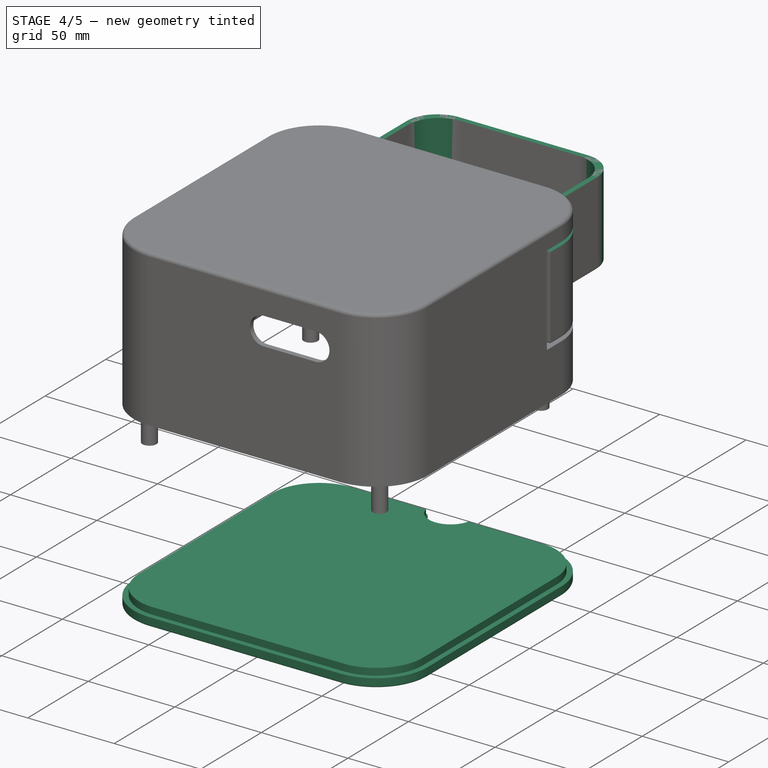
[diagram: stage 4 of 5 — iso view after this stage's code; geometry added in this stage tinted green]
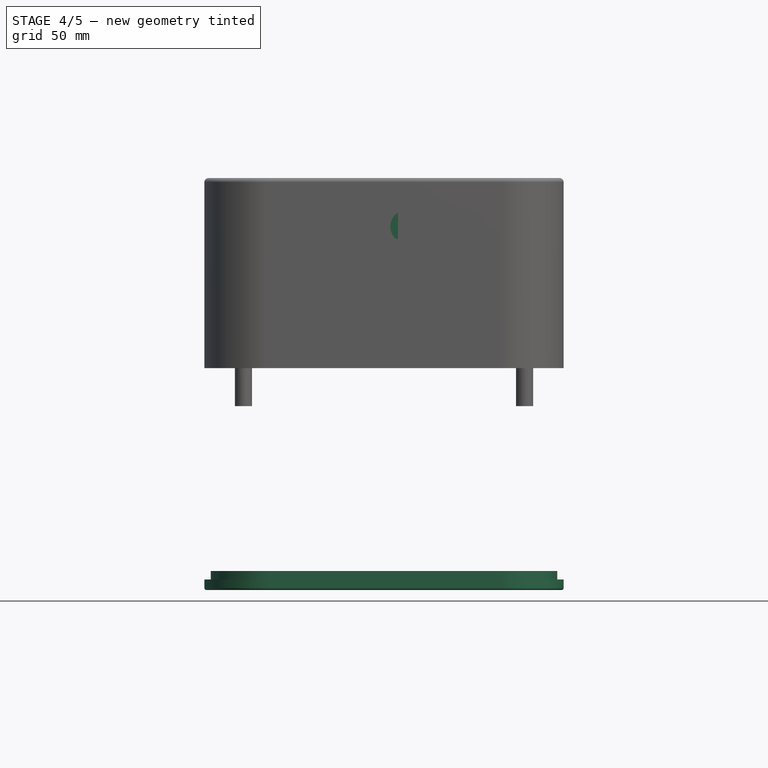
[diagram: stage 4 of 5 — front view after this stage's code; geometry added in this stage tinted green]
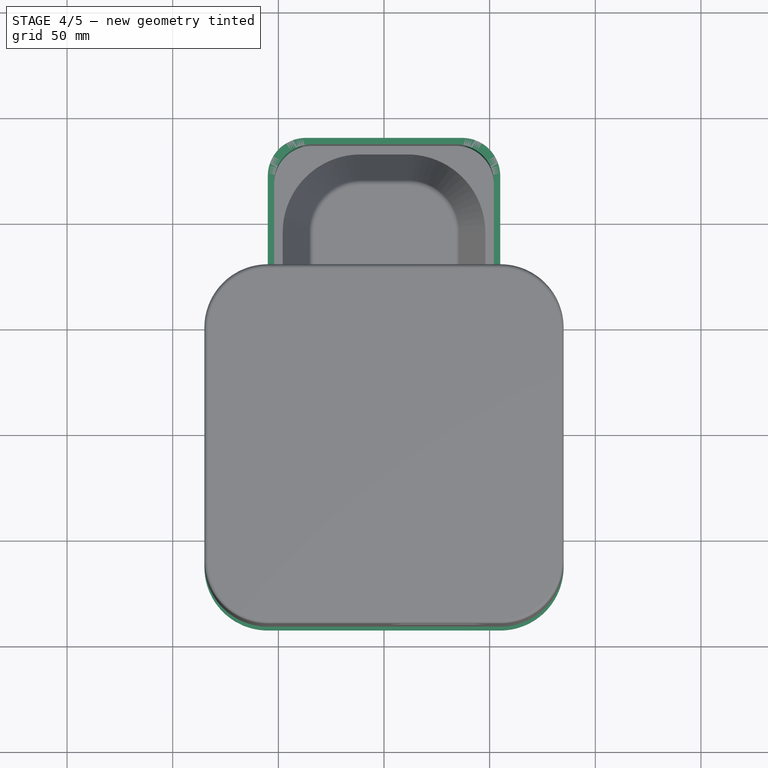
[diagram: stage 4 of 5 — top view after this stage's code; geometry added in this stage tinted green]
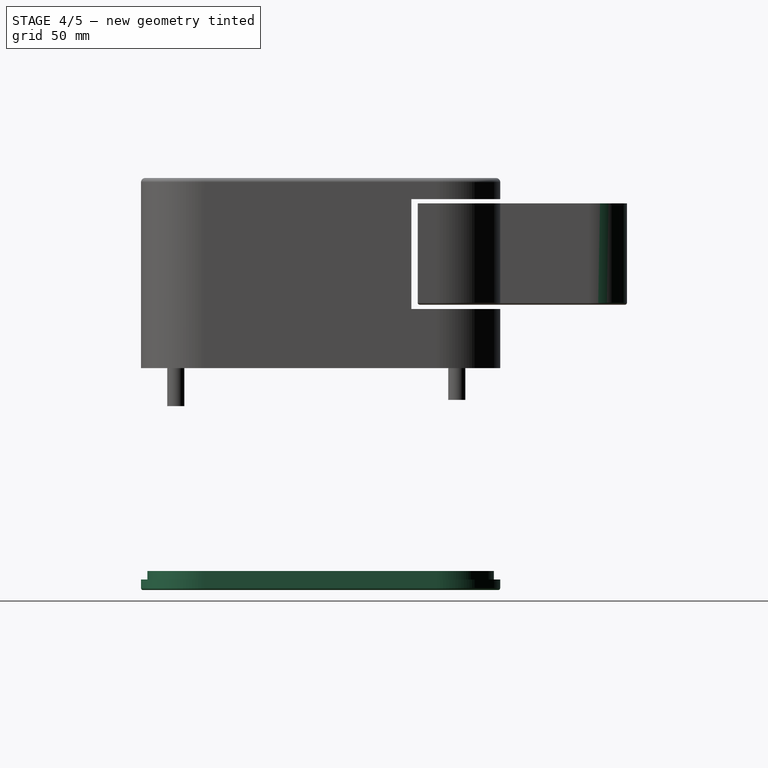
[diagram: stage 4 of 5 — right view after this stage's code; geometry added in this stage tinted green]
FEATURE [Sketcher::SketchObject] Sketch055
  ArcFitTolerance = 1e-06
  AttachmentSupport = -> [Pad025]
  ExternalGeometry = -> [Sketch052]
  FullyConstrained = true
  MakeInternals = false
  MapMode = 5
  Placement = pos=(0,-11.434,0) rot=(1,0,0;1.5708rad)
  sketch-geometry (1):
    g0: Circle CenterX=0 CenterY=236.136 CenterZ=0 NormalX=0 NormalY=0 NormalZ=1 AngleXU=0 Radius=20
  constraints (2):
    c: Coincident(g0,g-3)
    c: Diameter(g0) = 40
FEATURE [PartDesign::Pocket] Pocket026
  BaseFeature = -> Pad025
  Direction = (0,1,-2e-16)
  Length = 0
  Length2 = 5
  Profile = -> Sketch055
  ReferenceAxis = -> Sketch055 [N_Axis]
  Refine = true
  Suppressed = false
  Type = 3
  UpToFace = -> Pad025 [Face41]
FEATURE [PartDesign::Fillet] Fillet002
  Base = -> Pocket026 [Edge101,Edge58,Edge60,Edge99]
  BaseFeature = -> Pocket026
  Radius = 18
  Refine = true
  SupportTransform = false
  Suppressed = false
  UseAllEdges = false
FEATURE [PartDesign::ShapeBinder] ShapeBinder  label="HX711 Hole Binder"
  Support = -> [Pocket027]
  TraceSupport = false
FEATURE [Sketcher::SketchObject] Sketch058
  ArcFitTolerance = 1e-06
  AttachmentSupport = -> [Fillet002]
  ExternalGeometry = -> [ShapeBinder]
  FullyConstrained = true
  MakeInternals = false
  MapMode = 5
  Placement = pos=(0,-8.43396,0) rot=(0,0.707107,0.707107;3.14159rad)
  sketch-geometry (4):
    g0: LineSegment StartX=-9.6 StartY=258.195 StartZ=0 EndX=9.6 EndY=258.195 EndZ=0
    g1: LineSegment StartX=9.6 StartY=258.195 StartZ=0 EndX=9.6 EndY=277.395 EndZ=0
    g2: LineSegment StartX=9.6 StartY=277.395 StartZ=0 EndX=-9.6 EndY=277.395 EndZ=0
    g3: LineSegment StartX=-9.6 StartY=277.395 StartZ=0 EndX=-9.6 EndY=258.195 EndZ=0
  constraints (12):
    c: Coincident(g0,g1)
    c: Coincident(g1,g2)
    c: Coincident(g2,g3)
    c: Coincident(g3,g0)
    c: Horizontal(g0)
    c: Horizontal(g2)
    c: Vertical(g1)
    c: Vertical(g3)
    c: Distance(g3,g-5) = 3
    c: Distance(g0,g-3) = 3
    c: Distance(g1,g-4) = 3
    c: Distance(g2,g-6) = 3
FEATURE [PartDesign::Pad] Pad027
  BaseFeature = -> Fillet002
  Direction = (0,1,-2e-16)
  Length = 10
  Length2 = 10
  Profile = -> Sketch058
  ReferenceAxis = -> Sketch058 [N_Axis]
  Refine = true
  Suppressed = false
  Type = 3
  UpToFace = -> Fillet002 [Face14]
FEATURE [Sketcher::SketchObject] Sketch059
  ArcFitTolerance = 1e-06
  AttachmentSupport = -> [Pad027]
  ExternalGeometry = -> [ShapeBinder]
  FullyConstrained = true
  MakeInternals = false
  MapMode = 5
  Placement = pos=(0,-11.434,0) rot=(1,0,0;1.5708rad)
  sketch-geometry (4):
    g0: LineSegment StartX=-6.6 StartY=274.395 StartZ=0 EndX=-6.6 EndY=261.195 EndZ=0
    g1: LineSegment StartX=-6.6 StartY=261.195 StartZ=0 EndX=6.6 EndY=261.195 EndZ=0
    g2: LineSegment StartX=6.6 StartY=261.195 StartZ=0 EndX=6.6 EndY=274.395 EndZ=0
    g3: LineSegment StartX=6.6 StartY=274.395 StartZ=0 EndX=-6.6 EndY=274.395 EndZ=0
  constraints (10):
    c: Coincident(g0,g1)
    c: Coincident(g1,g2)
    c: Coincident(g2,g3)
    c: Coincident(g3,g0)
    c: Vertical(g0)
    c: Vertical(g2)
    c: Horizontal(g1)
    c: Horizontal(g3)
    c: Coincident(g0,g-5)
    c: Coincident(g1,g-6)
FEATURE [PartDesign::Pocket] Pocket028
  BaseFeature = -> Pad027
  Direction = (0,1,-2e-16)
  Length = 20
  Length2 = 5
  Profile = -> Sketch059
  ReferenceAxis = -> Sketch059 [N_Axis]
  Refine = true
  Suppressed = false
  Type = 0
FEATURE [PartDesign::ShapeBinder] ShapeBinder002  label="Inside Base Shape"
  Support = -> [Pocket008]
  TraceSupport = false
FEATURE [PartDesign::ShapeBinder] ShapeBinder003  label="Outside Shape"
  Support = -> [Pocket008]
  TraceSupport = false
FEATURE [PartDesign::Pad] Pad028
  Direction = (0,0,1)
  Length = 4
  Length2 = 10
  Profile = -> ShapeBinder002
  Refine = true
  Suppressed = false
  Type = 0
FEATURE [PartDesign::Pad] Pad029
  BaseFeature = -> Pad028
  Direction = (0,0,1)
  Length = 5
  Length2 = 10
  Profile = -> ShapeBinder003
  Refine = true
  Reversed = true
  Suppressed = false
  Type = 0
FEATURE [Sketcher::SketchObject] Sketch061
  ArcFitTolerance = 1e-06
  AttachmentSupport = -> [Pad029]
  ExternalGeometry = -> [Pad029]
  FullyConstrained = true
  MakeInternals = false
  MapMode = 5
  Placement = pos=(0,0,95) rot=(1,0,0;3.14159rad)
  sketch-geometry (1):
    g0: Circle CenterX=0 CenterY=-27.6169 CenterZ=0 NormalX=0 NormalY=0 NormalZ=1 AngleXU=0 Radius=12.5
  constraints (2):
    c: Diameter(g0) = 25
    c: Symmetric(g-3,g-3,g0)
FEATURE [PartDesign::Pocket] Pocket031
  BaseFeature = -> Pad029
  Direction = (0,0,1)
  Length = 5
  Length2 = 5
  Profile = -> Sketch061
  ReferenceAxis = -> Sketch061 [N_Axis]
  Refine = true
  Suppressed = false
  Type = 1
FEATURE [PartDesign::Fillet] Fillet003
  Base = -> Pocket031 [Edge49,Edge45]
  BaseFeature = -> Pocket031
  Radius = 2
  Refine = true
  SupportTransform = false
  Suppressed = false
  UseAllEdges = false
FEATURE [PartDesign::Fillet] Fillet005
  Base = -> Pocket028 [Face48]
  BaseFeature = -> Pocket028
  Radius = 1
  Refine = true
  SupportTransform = false
  Suppressed = false
  UseAllEdges = false
FEATURE [PartDesign::Fillet] Fillet006
  Base = -> Fillet003 [Face23]
  BaseFeature = -> Fillet003
  Radius = 1
  Refine = true
  SupportTransform = false
  Suppressed = false
  UseAllEdges = false
FEATURE [PartDesign::Body] Body010  label="Storage Cover"
  AllowCompound = false
  Group = -> [ShapeBinder002,ShapeBinder003,Pad028,Pad029,Sketch061,Pocket031,Fillet003,Fillet006,Thickness003]
  Origin = -> Origin010
  Tip = -> Thickness003
FEATURE [PartDesign::Pocket] Pocket032
  BaseFeature = -> Fillet005
  Direction = (0,0,-1)
  Length = 2
  Length2 = 5
  Profile = -> Fillet005 [Face4]
  Refine = true
  Suppressed = false
  Type = 0
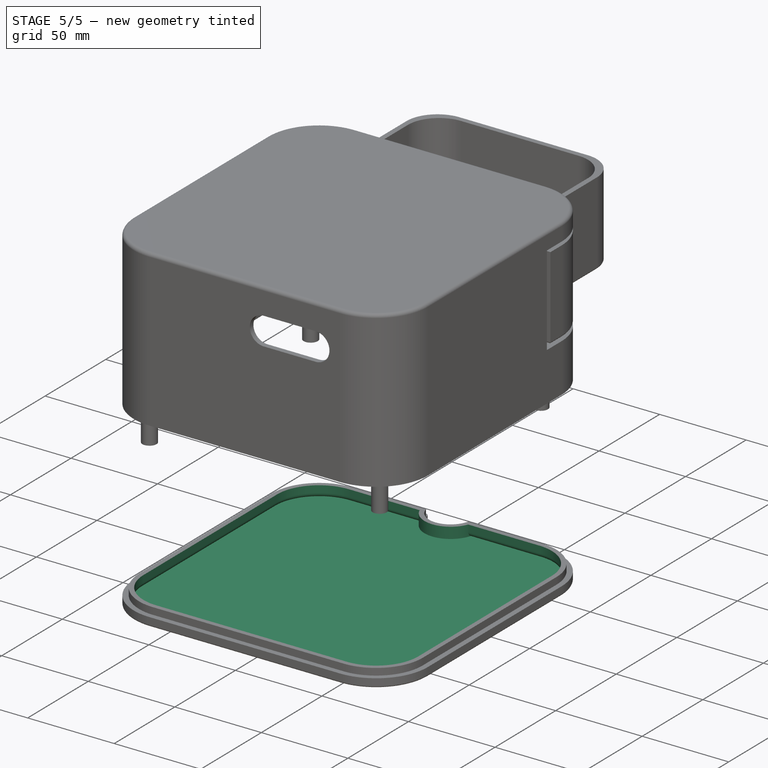
[diagram: stage 5 of 5 — iso view after this stage's code; geometry added in this stage tinted green]
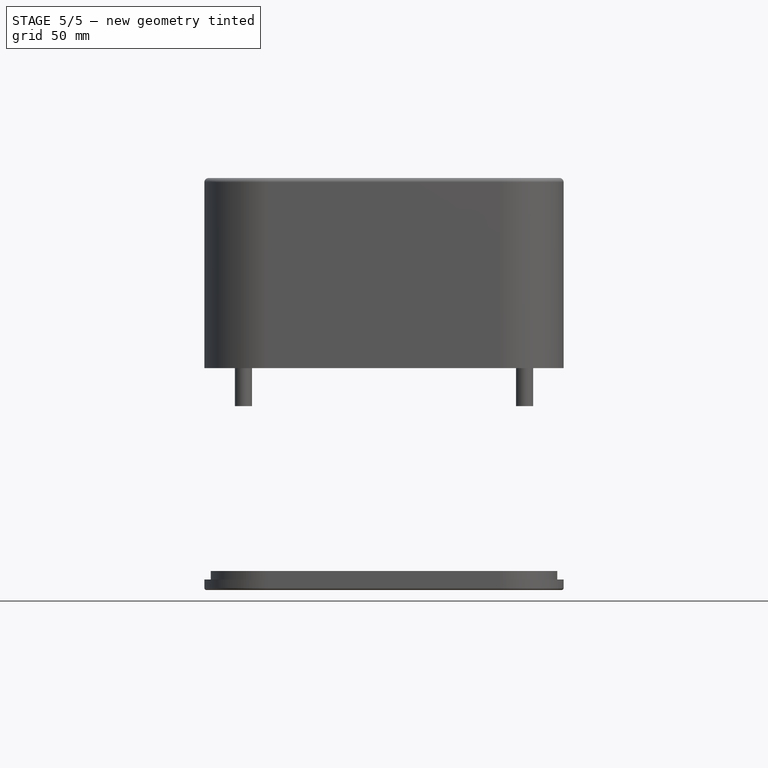
[diagram: stage 5 of 5 — front view after this stage's code; geometry added in this stage tinted green]
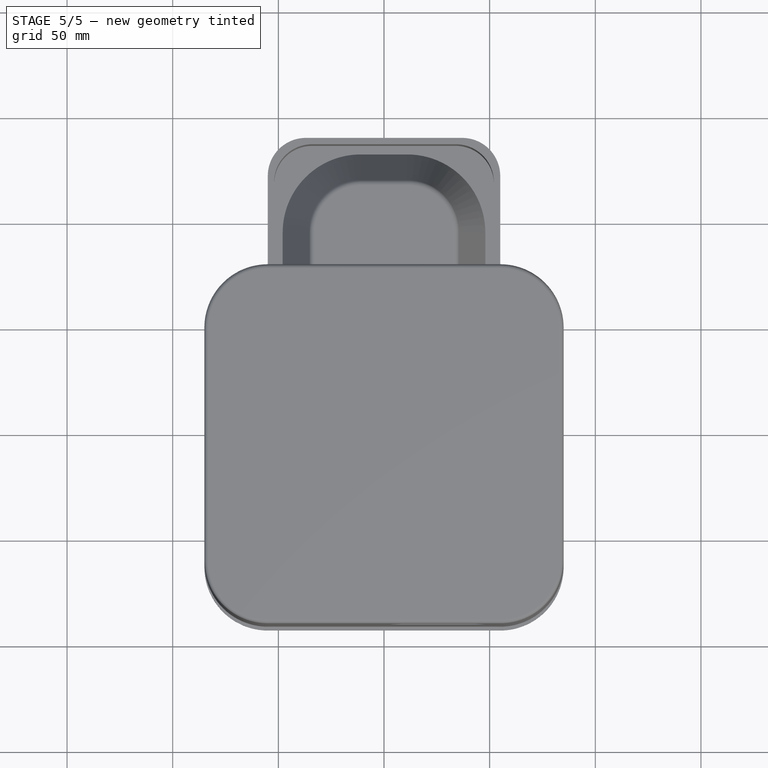
[diagram: stage 5 of 5 — top view after this stage's code; geometry added in this stage tinted green]
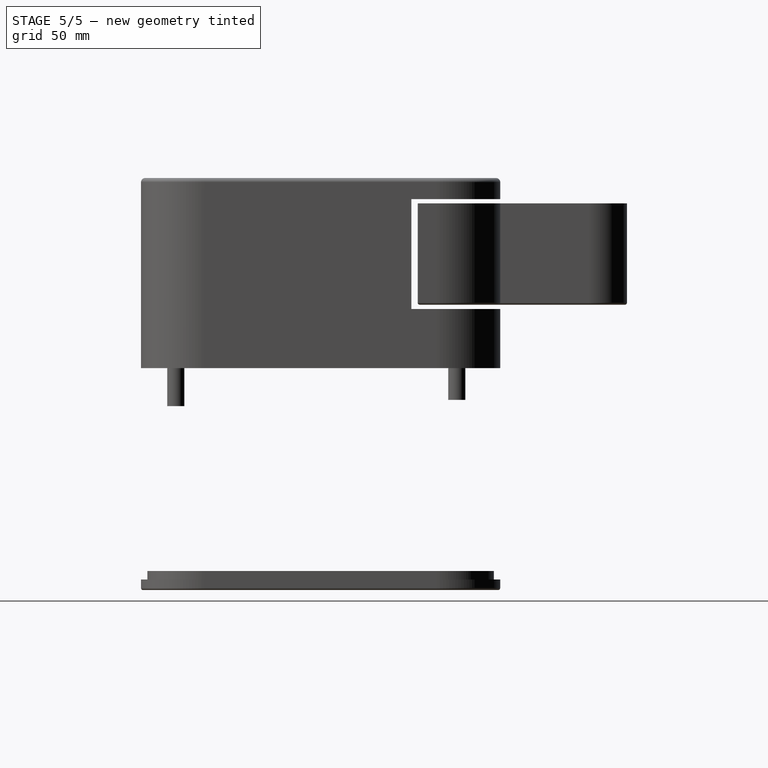
[diagram: stage 5 of 5 — right view after this stage's code; geometry added in this stage tinted green]
FEATURE [PartDesign::Line] DatumLine  label="Hinge center"
  AttacherType = Attacher::AttachEngineLine
  AttachmentSupport = -> [Pocket004]
  Length = 20
  MapMode = 42
  Placement = pos=(-2.6468e-12,-27.4425,215) rot=(0.57735,0.57735,0.57735;2.0944rad)
  ResizeMode = 0
FEATURE [PartDesign::Plane] DatumPlane  label="Door floor plane"
  AttachmentSupport = -> [DatumLine]
  Length = 204
  MapMode = 3
  Placement = pos=(-2.6468e-12,-27.4425,215) rot=(0.707107,0.707107,0;3.14159rad)
  ResizeMode = 0
  Width = 204
FEATURE [PartDesign::Plane] CopyDatumPlane
  Length = 74.9477
  Placement = pos=(-2.6041e-12,-27.4425,215) rot=(0.707107,0.707107,0;3.14159rad)
  ResizeMode = 0
  Width = 61.2839
FEATURE [PartDesign::SubShapeBinder] Binder
  BindCopyOnChange = 0
  BindMode = 0
  ClaimChildren = false
  Context = -> Body001 [Binder.]
  Fuse = false
  MakeFace = true
  OffsetFill = false
  OffsetIntersection = false
  OffsetJoinType = 0
  OffsetOpenResult = false
  PartialLoad = false
  Refine = true
  Relative = true
  Support = -> [Body[Pocket004.Edge74,Pocket004.Face29,Pocket004.Face33,Pocket004.Edge73]]
  _Version = 2
FEATURE [Sketcher::SketchObject] Sketch011
  ArcFitTolerance = 1e-06
  AttachmentSupport = -> [Binder]
  ExternalGeometry = -> [Binder]
  FullyConstrained = true
  MakeInternals = false
  MapMode = 5
  Placement = pos=(-13,0,0) rot=(0.57735,0.57735,0.57735;2.0944rad)
  sketch-geometry (7):
    g0: LineSegment StartX=-31.6637 StartY=215 StartZ=0 EndX=-29.5387 EndY=211.319 EndZ=0
    g1: LineSegment StartX=-29.5387 StartY=211.319 StartZ=0 EndX=-25.2887 EndY=211.319 EndZ=0
    g2: LineSegment StartX=-25.2887 StartY=211.319 StartZ=0 EndX=-23.1637 EndY=215 EndZ=0
    g3: LineSegment StartX=-23.1637 StartY=215 StartZ=0 EndX=-25.2887 EndY=218.681 EndZ=0
    g4: LineSegment StartX=-25.2887 StartY=218.681 StartZ=0 EndX=-29.5387 EndY=218.681 EndZ=0
    g5: LineSegment StartX=-29.5387 StartY=218.681 StartZ=0 EndX=-31.6637 EndY=215 EndZ=0
    g6: Circle [constr] CenterX=-27.4137 CenterY=215 CenterZ=0 NormalX=0 NormalY=0 NormalZ=1 AngleXU=0 Radius=4.25
  constraints (19):
    c: Coincident(g0,g1)
    c: Coincident(g1,g2)
    c: Coincident(g2,g3)
    c: Coincident(g3,g4)
    c: Coincident(g4,g5)
    c: Coincident(g5,g0)
    c: Equal(g0, g1-g5) x5
    c: PointOnObject(g0,g6)
    c: PointOnObject(g1,g6)
    c: PointOnObject(g2,g6)
    c: PointOnObject(g3,g6)
    c: PointOnObject(g4,g6)
    c: PointOnObject(g5,g6)
    c: Coincident(g6,g-5)
    c: PointOnObject(g5,g-4)
    c: Horizontal(g2,g6)
    c: DistanceX(g-5,g-6) = 59.9137
    c: DistanceX(g-6,g-6) = 34.9137
    c: DistanceX(g-5,g-6) = 25
FEATURE [Sketcher::SketchObject] Sketch012
  ArcFitTolerance = 1e-06
  AttachmentSupport = -> [YZ_Plane001]
  ExternalGeometry = -> [Binder]
  FullyConstrained = true
  MakeInternals = false
  MapMode = 5
  Placement = pos=(0,0,0) rot=(0.57735,0.57735,0.57735;2.0944rad)
  sketch-geometry (7):
    g0: ArcOfCircle CenterX=-27.4137 CenterY=215 CenterZ=0 NormalX=0 NormalY=0 NormalZ=1 AngleXU=0 Radius=11.25 StartAngle=3.14159 EndAngle=5.83678
    g1: LineSegment StartX=-15.66 StartY=213.499 StartZ=0 EndX=-17.2662 EndY=210.143 EndZ=0
    g2: ArcOfCircle CenterX=-27.4137 CenterY=215 CenterZ=0 NormalX=0 NormalY=0 NormalZ=1 AngleXU=0 Radius=11.25 StartAngle=0.444057 EndAngle=3.14159
    g3: LineSegment StartX=-15.6685 StartY=216.499 StartZ=0 EndX=-17.2548 EndY=219.833 EndZ=0
    g4: LineSegment StartX=-15.6685 StartY=216.499 StartZ=0 EndX=0 EndY=216.499 EndZ=0
    g5: LineSegment StartX=0 StartY=216.499 StartZ=0 EndX=0 EndY=213.499 EndZ=0
    g6: LineSegment StartX=-15.66 StartY=213.499 StartZ=0 EndX=0 EndY=213.499 EndZ=0
  constraints (18):
    c: Horizontal(g0,g0)
    c: Tangent(g0,g1) = 1.5708
    c: Coincident(g0,g-4)
    c: Tangent(g2,g3) = -1.5708
    c: Radius(g2) = 11.25
    c: Horizontal(g4)
    c: Coincident(g3,g4)
    c: Coincident(g0,g2)
    c: DistanceY(g0,g2) = 9.69
    c: Coincident(g5,g4)
    c: Vertical(g5)
    c: Coincident(g0,g2)
    c: PointOnObject(g4,g-2)
    c: Block(g5)
    c: DistanceX(g1,g5) = 15.66
    c: Coincident(g6,g1)
    c: Coincident(g6,g5)
    c: Horizontal(g6)
FEATURE [PartDesign::Plane] DatumPlane001  label="Door center plane"
  AttachmentSupport = -> [DatumLine]
  Length = 211.436
  MapMode = 2
  Placement = pos=(-2.6468e-12,-27.4425,215) rot=(0.57735,0.57735,0.57735;2.0944rad)
  ResizeMode = 0
  Width = 293.933
FEATURE [PartDesign::SubShapeBinder] Binder001
  BindCopyOnChange = 0
  BindMode = 0
  ClaimChildren = false
  Context = -> Body002 [Binder001.]
  Fuse = false
  MakeFace = true
  OffsetFill = false
  OffsetIntersection = false
  OffsetJoinType = 0
  OffsetOpenResult = false
  PartialLoad = false
  Refine = true
  Relative = true
  Support = -> [Body[Pocket004.Face23,Pocket004.Face21]]
  _Version = 2
FEATURE [PartDesign::SubShapeBinder] Binder002
  BindCopyOnChange = 0
  BindMode = 0
  ClaimChildren = false
  Context = -> Body002 [Binder002.]
  Fuse = false
  MakeFace = true
  OffsetFill = false
  OffsetIntersection = false
  OffsetJoinType = 0
  OffsetOpenResult = false
  PartialLoad = false
  Refine = true
  Relative = true
  Support = -> [Body001[Pocket006.Face3]]
  _Version = 2
FEATURE [PartDesign::Plane] CopyDatumPlane001
  Length = 74.8801
  Placement = pos=(0,-27.4425,215) rot=(0.57735,0.57735,0.57735;2.0944rad)
  ResizeMode = 0
  Width = 262.438
FEATURE [Sketcher::SketchObject] Sketch016
  ArcFitTolerance = 1e-06
  AttachmentSupport = -> [CopyDatumPlane001]
  ExternalGeometry = -> [Binder002]
  FullyConstrained = true
  MakeInternals = false
  MapMode = 5
  Placement = pos=(0,-27.4425,215) rot=(0.57735,0.57735,0.57735;2.0944rad)
  sketch-geometry (7):
    g0: LineSegment StartX=3.9 StartY=0 StartZ=0 EndX=1.95 EndY=3.3775 EndZ=0
    g1: LineSegment StartX=1.95 StartY=3.3775 StartZ=0 EndX=-1.95 EndY=3.3775 EndZ=0
    g2: LineSegment StartX=-1.95 StartY=3.3775 StartZ=0 EndX=-3.9 EndY=4.765e-13 EndZ=0
    g3: LineSegment StartX=-3.9 StartY=4.765e-13 StartZ=0 EndX=-1.95 EndY=-3.3775 EndZ=0
    g4: LineSegment StartX=-1.95 StartY=-3.3775 StartZ=0 EndX=1.95 EndY=-3.3775 EndZ=0
    g5: LineSegment StartX=1.95 StartY=-3.3775 StartZ=0 EndX=3.9 EndY=0 EndZ=0
    g6: Circle [constr] CenterX=0 CenterY=0 CenterZ=0 NormalX=0 NormalY=0 NormalZ=1 AngleXU=0 Radius=3.9
  constraints (16):
    c: Coincident(g0,g1)
    c: Coincident(g1,g2)
    c: Coincident(g2,g3)
    c: Coincident(g3,g4)
    c: Coincident(g4,g5)
    c: Coincident(g5,g0)
    c: Equal(g0, g1-g5) x5
    c: PointOnObject(g0,g6)
    c: PointOnObject(g1,g6)
    c: PointOnObject(g2,g6)
    c: PointOnObject(g3,g6)
    c: PointOnObject(g4,g6)
    c: PointOnObject(g5,g6)
    c: Radius(g6) = 3.9
    c: Coincident(g6,g-1)
    c: PointOnObject(g5,g-1)
FEATURE [PartDesign::Pad] Pad005  label="Square Push"
  Direction = (1,0,0)
  Length = 42
  Length2 = 10
  Midplane = true
  Placement = pos=(0,-27.4425,215) rot=(0.57735,0.57735,0.57735;2.0944rad)
  Profile = -> Sketch016
  ReferenceAxis = -> Sketch016 [N_Axis]
  Refine = true
  Suppressed = false
  Type = 0
FEATURE [Sketcher::SketchObject] Sketch017
  ArcFitTolerance = 1e-06
  AttachmentSupport = -> [Pad005]
  FullyConstrained = true
  MakeInternals = false
  MapMode = 5
  Placement = pos=(-21,-27.4425,215) rot=(0.57735,0.57735,-0.57735;4.18879rad)
  sketch-geometry (1):
    g0: Circle CenterX=0 CenterY=0 CenterZ=0 NormalX=0 NormalY=0 NormalZ=1 AngleXU=0 Radius=5.9
  constraints (2):
    c: Diameter(g0) = 11.8
    c: Coincident(g0,g-1)
FEATURE [PartDesign::Pad] Pad006  label="Circle push"
  BaseFeature = -> Pad005
  Direction = (-1,0,0)
  Length = 7
  Length2 = 10
  Midplane = true
  Placement = pos=(0,-27.4425,215) rot=(0.57735,0.57735,0.57735;2.0944rad)
  Profile = -> Sketch017
  ReferenceAxis = -> Sketch017 [N_Axis]
  Refine = true
  Suppressed = false
  Type = 0
FEATURE [PartDesign::SubShapeBinder] Binder003  label="Axle Binder"
  BindCopyOnChange = 0
  BindMode = 0
  ClaimChildren = false
  Context = -> Body002 [Binder003.]
  Fuse = false
  MakeFace = true
  OffsetFill = false
  OffsetIntersection = false
  OffsetJoinType = 0
  OffsetOpenResult = false
  PartialLoad = false
  Placement = pos=(3.5,-1.07e-14,0) rot=(0,0,1;0rad)
  Refine = true
  Relative = true
  _Version = 2
FEATURE [Sketcher::SketchObject] Sketch018
  ArcFitTolerance = 1e-06
  AttachmentSupport = -> [Pad006]
  ExternalGeometry = -> [Binder003]
  FullyConstrained = true
  MakeInternals = false
  MapMode = 5
  Placement = pos=(-24.5,-27.4425,215) rot=(0.57735,0.57735,-0.57735;4.18879rad)
  sketch-geometry (5):
    g0: LineSegment StartX=0 StartY=0 StartZ=0 EndX=0 EndY=2.375 EndZ=0
    g1: LineSegment StartX=0 StartY=2.375 StartZ=0 EndX=-0.0980568 EndY=2.47306 EndZ=0
    g2: LineSegment StartX=-0.0980568 StartY=2.47306 StartZ=0 EndX=-0.160985 EndY=2.46976 EndZ=0
    g3: LineSegment StartX=-0.160985 StartY=2.46976 StartZ=0 EndX=-0.248255 EndY=2.36199 EndZ=0
    g4: LineSegment StartX=-0.248255 StartY=2.36199 StartZ=0 EndX=0 EndY=0 EndZ=0
  constraints (10):
    c: Coincident(g0,g-1)
    c: Coincident(g0,g-4)
    c: Coincident(g1,g0)
    c: Coincident(g1,g-4)
    c: Coincident(g3,g2)
    c: Coincident(g3,g-5)
    c: Coincident(g4,g3)
    c: Coincident(g4,g0)
    c: Coincident(g2,g-5)
    c: Coincident(g2,g1)
FEATURE [PartDesign::Pocket] Pocket007  label="Axle form"
  BaseFeature = -> Pad006
  Direction = (1,0,0)
  Length = 3.5
  Length2 = 5
  Placement = pos=(0,-27.4425,215) rot=(0.57735,0.57735,0.57735;2.0944rad)
  Profile = -> Sketch018
  ReferenceAxis = -> Sketch018 [N_Axis]
  Refine = true
  Suppressed = false
  Type = 0
FEATURE [PartDesign::PolarPattern] PolarPattern  label="Axle repeat round"
  Angle = 360
  Axis = -> Sketch018 [N_Axis]
  BaseFeature = -> Pocket007
  Mode = 0
  Occurrences = 60
  Offset = 120
  Originals = -> [Pocket007]
  Placement = pos=(0,-27.4425,215) rot=(0.57735,0.57735,0.57735;2.0944rad)
  Refine = true
  Suppressed = false
  TransformMode = 0
FEATURE [PartDesign::Pad] Pad019  label="Door Pin width"
  Direction = (1,0,0)
  Length = 22
  Length2 = 10
  Midplane = true
  Placement = pos=(0,0,0) rot=(1,1,1;2.0944rad)
  Profile = -> Sketch012
  ReferenceAxis = -> Sketch012 [N_Axis]
  Refine = true
  Suppressed = false
  Type = 0
FEATURE [Sketcher::SketchObject] Sketch015
  ArcFitTolerance = 1e-06
  AttachmentSupport = -> [Pad019]
  FullyConstrained = true
  MakeInternals = false
  MapMode = 5
  Placement = pos=(-2.4e-14,7.21e-14,216.499) rot=(0,0,-1;1.5708rad)
  sketch-geometry (5):
    g0: LineSegment StartX=1.545e-13 StartY=-11 StartZ=0 EndX=1.616e-13 EndY=11 EndZ=0
    g1: LineSegment StartX=1.616e-13 StartY=11 StartZ=0 EndX=15.6637 EndY=11 EndZ=0
    g2: LineSegment StartX=1.545e-13 StartY=-11 StartZ=0 EndX=15.6637 EndY=-11 EndZ=0
    g3: LineSegment StartX=15.6637 StartY=11 StartZ=0 EndX=0 EndY=1.8e-15 EndZ=0
    g4: LineSegment StartX=0 StartY=1.8e-15 StartZ=0 EndX=15.6637 EndY=-11 EndZ=0
  constraints (10):
    c: Coincident(g0,g-4)
    c: Coincident(g0,g-6)
    c: Coincident(g1,g0)
    c: Coincident(g1,g-6)
    c: Coincident(g2,g0)
    c: Coincident(g2,g-5)
    c: Coincident(g3,g-6)
    c: Coincident(g3,g-1)
    c: Coincident(g4,g3)
    c: Coincident(g4,g2)
FEATURE [PartDesign::Pocket] Pocket014  label="Door Cut"
  BaseFeature = -> Pad019
  Direction = (0,0,-1)
  Length = 0
  Length2 = 5
  Placement = pos=(0,0,0) rot=(1,1,1;2.0944rad)
  Profile = -> Sketch015
  ReferenceAxis = -> Sketch015 [N_Axis]
  Refine = true
  Suppressed = false
  Type = 3
  UpToFace = -> Pad019 [Face2]
FEATURE [PartDesign::Pocket] Pocket015  label="Door Pin Hole"
  BaseFeature = -> Pocket014
  Direction = (-1,0,0)
  Length = 5
  Length2 = 5
  Placement = pos=(0,0,0) rot=(1,1,1;2.0944rad)
  Profile = -> Sketch011
  ReferenceAxis = -> Sketch011 [N_Axis]
  Refine = true
  Reversed = true
  Suppressed = false
  Type = 1
FEATURE [PartDesign::Revolution] Revolution
  Angle = 360
  Angle2 = 60
  Axis = (7e-16,-2e-16,-1)
  Base = (-1.665e-13,1.202e-13,216.499)
  BaseFeature = -> Pocket015
  Placement = pos=(0,0,0) rot=(1,1,1;2.0944rad)
  Profile = -> Pocket015 [Face8]
  ReferenceAxis = -> Pocket015 [Edge37]
  Refine = true
  Suppressed = false
  Type = 3
  UpToFace = -> Pocket015 [Face9]
FEATURE [PartDesign::Fillet] Fillet001
  Base = -> Revolution [Edge32,Edge1]
  BaseFeature = -> Revolution
  Placement = pos=(0,0,0) rot=(1,1,1;2.0944rad)
  Radius = 4
  Refine = true
  SupportTransform = false
  Suppressed = false
  UseAllEdges = false
FEATURE [PartDesign::Thickness] Thickness003
  Base = -> Fillet006 [Face28]
  BaseFeature = -> Fillet006
  Intersection = true
  Join = 0
  Mode = 0
  Refine = true
  Reversed = true
  SupportTransform = false
  Suppressed = false
  Value = 2.6
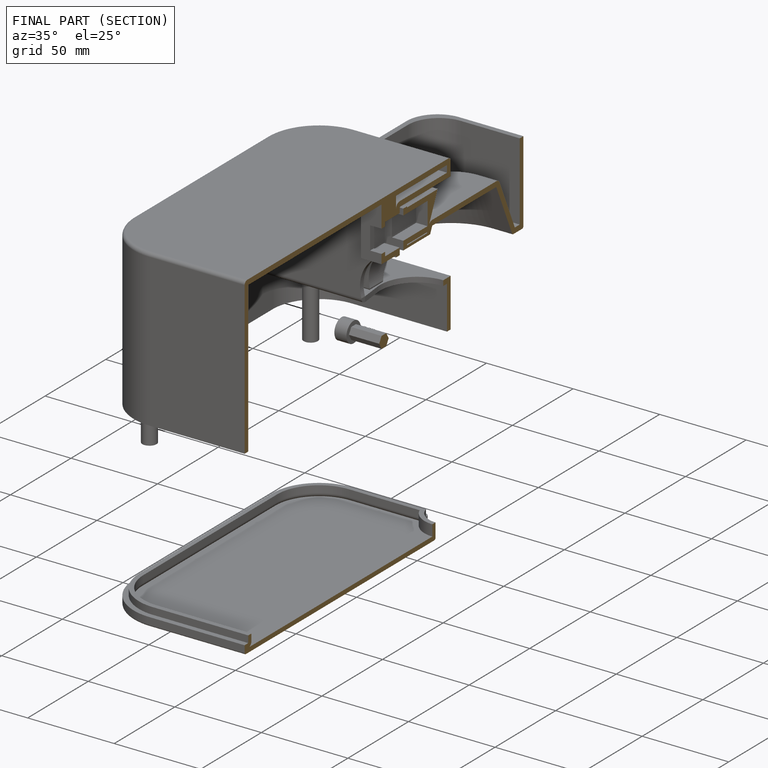
[diagram: finished part — half-section view (interior)]
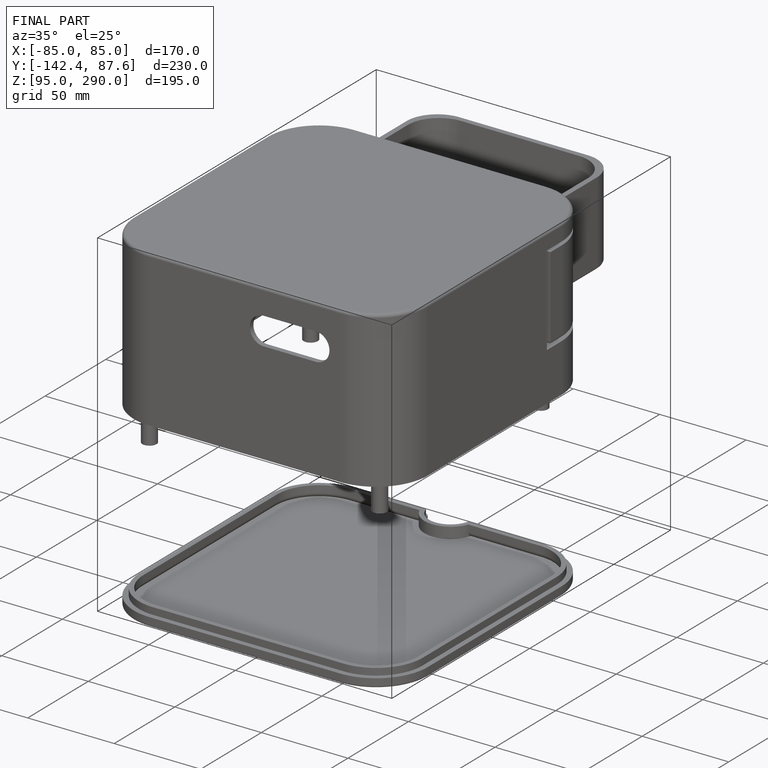
[diagram: finished part — iso view with bounding-box wireframe]
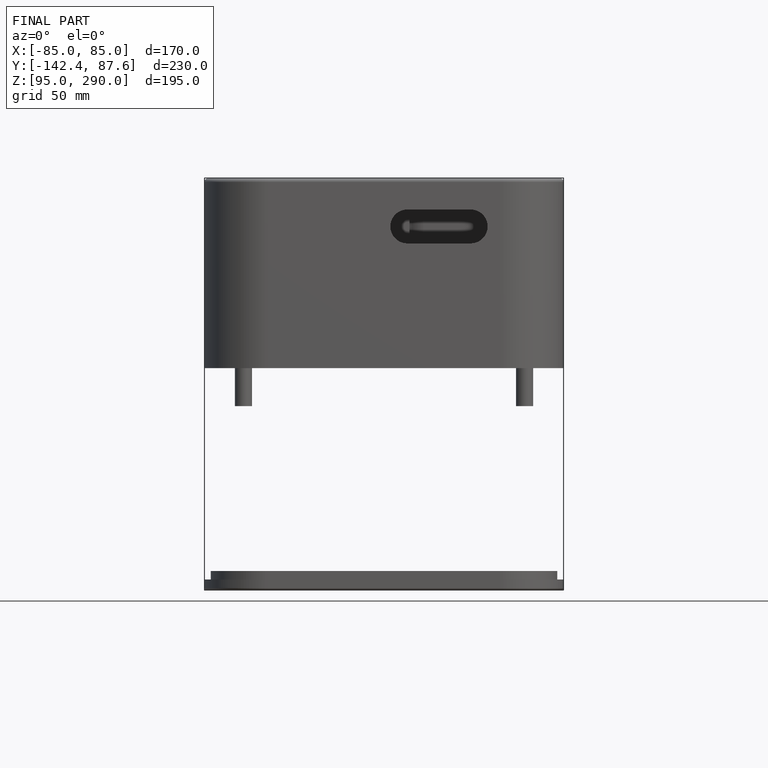
[diagram: finished part — front view with bounding-box wireframe]
